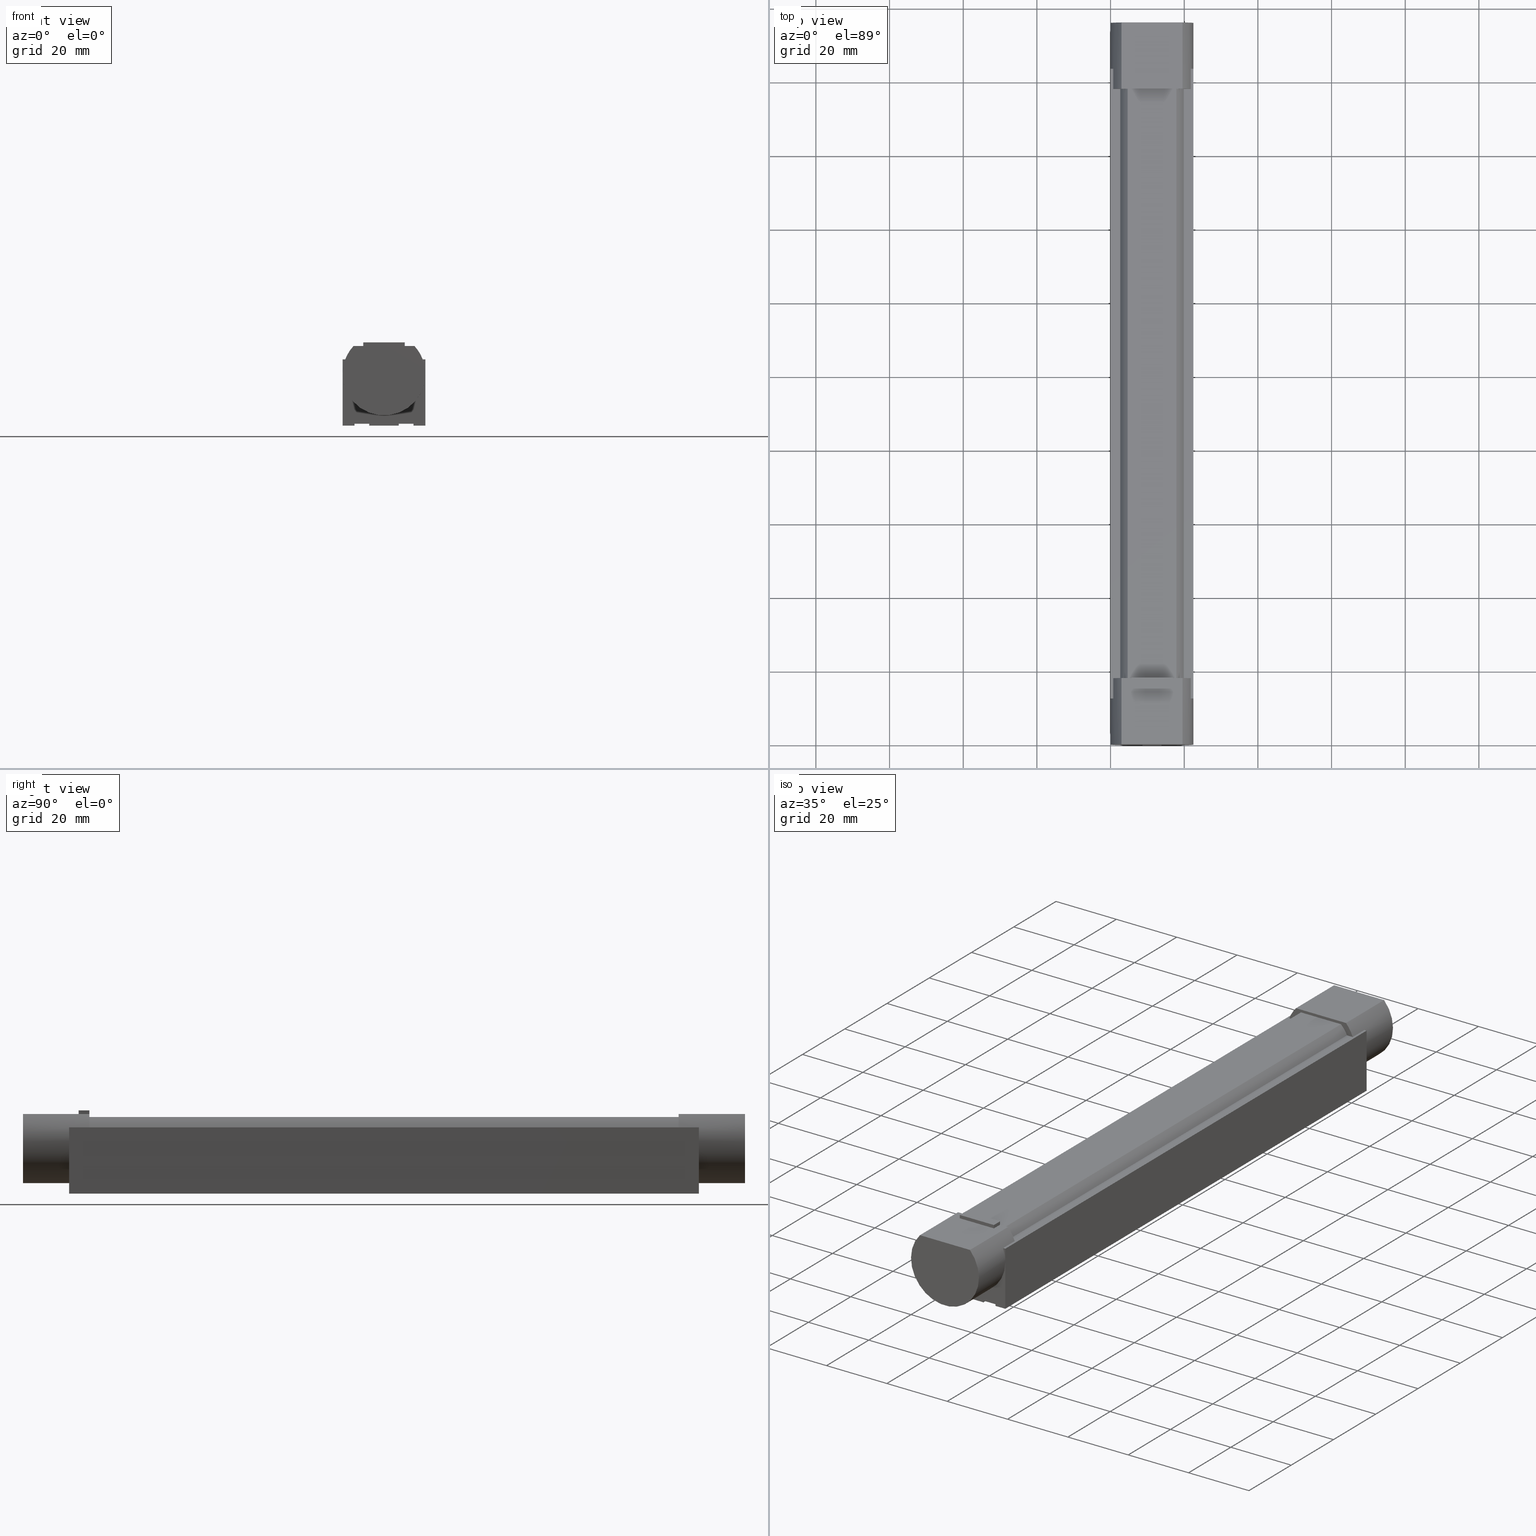
[diagram: canonical four-view strip — front | top / right | iso, engineering-drawing reading convention]
A machine part, canonical four-view strip (front | top / right | iso — engineering-drawing reading convention). The complete STEP part file that produces these views, byte-faithful:
ISO-10303-21;
HEADER;
FILE_DESCRIPTION(('Creo Elements/Direct Modeling STEP Export'),'2;1');
FILE_NAME(
'C:/temp/JobSpoolerServerData/JobServer Files/e37c111c-e7a1-45b4-b9c6-55
6e5893ad4a/work/output/model.stp','2019-07-30T19:57:43',(''),(''),
'Creo Elements/Direct Modeling STEP processor for AP214 (Solid Model)',
'Creo Elements/Direct Modeling 20.1A  29-Sep-2018 (C) Parametric Technol
ogy GmbH','');
FILE_SCHEMA(('AUTOMOTIVE_DESIGN { 1 0 10303 214 1 1 1 1 }'));
ENDSEC;
DATA;
#10=CARTESIAN_POINT('',(106.55,-10.05,-22.));
#20=DIRECTION('',(0.,0.,1.));
#30=DIRECTION('',(1.,0.,0.));
#40=AXIS2_PLACEMENT_3D('',#10,#20,#30);
#50=PLANE('',#40);
#60=CARTESIAN_POINT('',(12.5,0.,-22.));
#70=DIRECTION('',(0.,-1.,0.));
#80=VECTOR('',#70,1.);
#90=LINE('',#60,#80);
#100=CARTESIAN_POINT('',(12.5,11.25,-22.));
#110=VERTEX_POINT('',#100);
#120=CARTESIAN_POINT('',(12.5,10.514041296652,-22.));
#130=VERTEX_POINT('',#120);
#140=EDGE_CURVE('',#110,#130,#90,.T.);
#150=ORIENTED_EDGE('',*,*,#140,.F.);
#160=CARTESIAN_POINT('',(13.7200045691454,10.514041296652,-22.));
#170=DIRECTION('',(-1.,0.,0.));
#180=VECTOR('',#170,1.);
#190=LINE('',#160,#180);
#200=CARTESIAN_POINT('',(18.0000000000001,10.514041296652,-22.));
#210=VERTEX_POINT('',#200);
#220=EDGE_CURVE('',#210,#130,#190,.T.);
#230=ORIENTED_EDGE('',*,*,#220,.T.);
#240=CARTESIAN_POINT('',(18.0000000000001,0.,-22.));
#250=DIRECTION('',(0.,1.,0.));
#260=VECTOR('',#250,1.);
#270=LINE('',#240,#260);
#280=CARTESIAN_POINT('',(18.0000000000001,8.61684396980705,-22.));
#290=VERTEX_POINT('',#280);
#300=EDGE_CURVE('',#290,#210,#270,.T.);
#310=ORIENTED_EDGE('',*,*,#300,.T.);
#320=CARTESIAN_POINT('',(98.,8.61684396980704,-22.));
#330=DIRECTION('',(-1.,0.,0.));
#340=VECTOR('',#330,1.);
#350=LINE('',#320,#340);
#360=CARTESIAN_POINT('',(178.,8.61684396980704,-22.));
#370=VERTEX_POINT('',#360);
#380=EDGE_CURVE('',#370,#290,#350,.T.);
#390=ORIENTED_EDGE('',*,*,#380,.T.);
#400=CARTESIAN_POINT('',(178.,0.,-22.));
#410=DIRECTION('',(0.,-1.,0.));
#420=VECTOR('',#410,1.);
#430=LINE('',#400,#420);
#440=CARTESIAN_POINT('',(178.,10.514041296652,-22.));
#450=VERTEX_POINT('',#440);
#460=EDGE_CURVE('',#450,#370,#430,.T.);
#470=ORIENTED_EDGE('',*,*,#460,.T.);
#480=CARTESIAN_POINT('',(182.279995430855,10.514041296652,-22.));
#490=DIRECTION('',(1.,0.,0.));
#500=VECTOR('',#490,1.);
#510=LINE('',#480,#500);
#520=CARTESIAN_POINT('',(183.5,10.514041296652,-22.));
#530=VERTEX_POINT('',#520);
#540=EDGE_CURVE('',#450,#530,#510,.T.);
#550=ORIENTED_EDGE('',*,*,#540,.F.);
#560=CARTESIAN_POINT('',(183.5,0.,-22.));
#570=DIRECTION('',(0.,-1.,0.));
#580=VECTOR('',#570,1.);
#590=LINE('',#560,#580);
#600=CARTESIAN_POINT('',(183.5,11.25,-22.));
#610=VERTEX_POINT('',#600);
#620=EDGE_CURVE('',#610,#530,#590,.T.);
#630=ORIENTED_EDGE('',*,*,#620,.T.);
#640=CARTESIAN_POINT('',(0.,11.25,-22.));
#650=DIRECTION('',(-1.,0.,0.));
#660=VECTOR('',#650,1.);
#670=LINE('',#640,#660);
#680=EDGE_CURVE('',#610,#110,#670,.T.);
#690=ORIENTED_EDGE('',*,*,#680,.F.);
#700=EDGE_LOOP('',(#690,#630,#550,#470,#390,#310,#230,#150));
#710=FACE_OUTER_BOUND('',#700,.T.);
#720=ADVANCED_FACE('',(#710),#50,.F.);
#730=COLOUR_RGB('',0.647058844566345,0.647058844566345,0.647058844566345
);
#740=FILL_AREA_STYLE_COLOUR('',#730);
#750=FILL_AREA_STYLE('',(#740));
#760=SURFACE_STYLE_FILL_AREA(#750);
#770=SURFACE_SIDE_STYLE('',(#760));
#780=SURFACE_STYLE_USAGE(.BOTH.,#770);
#790=PRESENTATION_STYLE_ASSIGNMENT((#780));
#800=CARTESIAN_POINT('',(183.5,10.05,-20.8));
#810=DIRECTION('',(-1.,-0.,-0.));
#820=DIRECTION('',(0.,0.,-1.));
#830=AXIS2_PLACEMENT_3D('',#800,#810,#820);
#840=PLANE('',#830);
#850=CARTESIAN_POINT('',(183.5,0.,-4.));
#860=DIRECTION('',(0.,1.,0.));
#870=VECTOR('',#860,1.);
#880=LINE('',#850,#870);
#890=CARTESIAN_POINT('',(183.5,-11.25,-4.));
#900=VERTEX_POINT('',#890);
#910=CARTESIAN_POINT('',(183.5,-8.,-4.));
#920=VERTEX_POINT('',#910);
#930=EDGE_CURVE('',#900,#920,#880,.T.);
#940=ORIENTED_EDGE('',*,*,#930,.F.);
#950=CARTESIAN_POINT('',(183.5,-8.,-4.12));
#960=DIRECTION('',(0.,0.,1.));
#970=VECTOR('',#960,1.);
#980=LINE('',#950,#970);
#990=CARTESIAN_POINT('',(183.5,-8.,-4.50000000000001));
#1000=VERTEX_POINT('',#990);
#1010=EDGE_CURVE('',#1000,#920,#980,.T.);
#1020=ORIENTED_EDGE('',*,*,#1010,.T.);
#1030=CARTESIAN_POINT('',(183.5,-7.75,-4.50000000000001));
#1040=DIRECTION('',(0.,1.,0.));
#1050=VECTOR('',#1040,1.);
#1060=LINE('',#1030,#1050);
#1070=CARTESIAN_POINT('',(183.5,-4.00000000000001,-4.50000000000001));
#1080=VERTEX_POINT('',#1070);
#1090=EDGE_CURVE('',#1000,#1080,#1060,.T.);
#1100=ORIENTED_EDGE('',*,*,#1090,.F.);
#1110=CARTESIAN_POINT('',(183.5,-4.00000000000001,-4.2500000000495));
#1120=DIRECTION('',(0.,-4.03717463500056E-15,1.));
#1130=VECTOR('',#1120,1.);
#1140=LINE('',#1110,#1130);
#1150=CARTESIAN_POINT('',(183.5,-4.00000000000001,-4.));
#1160=VERTEX_POINT('',#1150);
#1170=EDGE_CURVE('',#1080,#1160,#1140,.T.);
#1180=ORIENTED_EDGE('',*,*,#1170,.F.);
#1190=CARTESIAN_POINT('',(183.5,-3.75,-4.));
#1200=DIRECTION('',(0.,1.,0.));
#1210=VECTOR('',#1200,1.);
#1220=LINE('',#1190,#1210);
#1230=CARTESIAN_POINT('',(183.5,4.,-4.));
#1240=VERTEX_POINT('',#1230);
#1250=EDGE_CURVE('',#1160,#1240,#1220,.T.);
#1260=ORIENTED_EDGE('',*,*,#1250,.F.);
#1270=CARTESIAN_POINT('',(183.5,4.,-4.05));
#1280=DIRECTION('',(0.,0.,-1.));
#1290=VECTOR('',#1280,1.);
#1300=LINE('',#1270,#1290);
#1310=CARTESIAN_POINT('',(183.5,4.,-4.50000000000001));
#1320=VERTEX_POINT('',#1310);
#1330=EDGE_CURVE('',#1240,#1320,#1300,.T.);
#1340=ORIENTED_EDGE('',*,*,#1330,.F.);
#1350=CARTESIAN_POINT('',(183.5,4.25,-4.50000000000001));
#1360=DIRECTION('',(0.,1.,0.));
#1370=VECTOR('',#1360,1.);
#1380=LINE('',#1350,#1370);
#1390=CARTESIAN_POINT('',(183.5,7.99999999999999,-4.50000000000001));
#1400=VERTEX_POINT('',#1390);
#1410=EDGE_CURVE('',#1320,#1400,#1380,.T.);
#1420=ORIENTED_EDGE('',*,*,#1410,.F.);
#1430=CARTESIAN_POINT('',(183.5,7.99999999999999,-4.08));
#1440=DIRECTION('',(0.,4.33257765707378E-15,-1.));
#1450=VECTOR('',#1440,1.);
#1460=LINE('',#1430,#1450);
#1470=CARTESIAN_POINT('',(183.5,7.99999999999999,-4.));
#1480=VERTEX_POINT('',#1470);
#1490=EDGE_CURVE('',#1480,#1400,#1460,.T.);
#1500=ORIENTED_EDGE('',*,*,#1490,.T.);
#1510=CARTESIAN_POINT('',(183.5,0.,-4.));
#1520=DIRECTION('',(0.,1.,0.));
#1530=VECTOR('',#1520,1.);
#1540=LINE('',#1510,#1530);
#1550=CARTESIAN_POINT('',(183.5,11.25,-4.));
#1560=VERTEX_POINT('',#1550);
#1570=EDGE_CURVE('',#1480,#1560,#1540,.T.);
#1580=ORIENTED_EDGE('',*,*,#1570,.F.);
#1590=CARTESIAN_POINT('',(183.5,11.25,0.));
#1600=DIRECTION('',(0.,0.,-1.));
#1610=VECTOR('',#1600,1.);
#1620=LINE('',#1590,#1610);
#1630=CARTESIAN_POINT('',(183.5,11.2492250572074,-18.));
#1640=VERTEX_POINT('',#1630);
#1650=EDGE_CURVE('',#1560,#1640,#1620,.T.);
#1660=ORIENTED_EDGE('',*,*,#1650,.F.);
#1670=CARTESIAN_POINT('',(183.5,0.,-18.));
#1680=DIRECTION('',(1.,0.,0.));
#1690=DIRECTION('',(0.,0.,1.));
#1700=AXIS2_PLACEMENT_3D('',#1670,#1680,#1690);
#1710=CIRCLE('',#1700,11.2492250572074);
#1720=CARTESIAN_POINT('',(183.5,-11.2492250572074,-18.));
#1730=VERTEX_POINT('',#1720);
#1740=EDGE_CURVE('',#1640,#1730,#1710,.T.);
#1750=ORIENTED_EDGE('',*,*,#1740,.F.);
#1760=CARTESIAN_POINT('',(183.5,-11.25,0.));
#1770=DIRECTION('',(0.,0.,1.));
#1780=VECTOR('',#1770,1.);
#1790=LINE('',#1760,#1780);
#1800=EDGE_CURVE('',#1730,#900,#1790,.T.);
#1810=ORIENTED_EDGE('',*,*,#1800,.F.);
#1820=EDGE_LOOP('',(#1810,#1750,#1660,#1580,#1500,#1420,#1340,#1260,
#1180,#1100,#1020,#940));
#1830=FACE_OUTER_BOUND('',#1820,.T.);
#1840=ADVANCED_FACE('',(#1830),#840,.F.);
#1850=COLOUR_RGB('',0.647058844566345,0.647058844566345,
0.647058844566345);
#1860=FILL_AREA_STYLE_COLOUR('',#1850);
#1870=FILL_AREA_STYLE('',(#1860));
#1880=SURFACE_STYLE_FILL_AREA(#1870);
#1890=SURFACE_SIDE_STYLE('',(#1880));
#1900=SURFACE_STYLE_USAGE(.BOTH.,#1890);
#1910=PRESENTATION_STYLE_ASSIGNMENT((#1900));
#1920=CARTESIAN_POINT('',(18.,5.65,-22.));
#1930=DIRECTION('',(0.,1.,0.));
#1940=DIRECTION('',(0.,0.,1.));
#1950=AXIS2_PLACEMENT_3D('',#1920,#1930,#1940);
#1960=PLANE('',#1950);
#1970=CARTESIAN_POINT('',(15.1,5.65,-26.6));
#1980=DIRECTION('',(0.,0.,1.));
#1990=VECTOR('',#1980,1.);
#2000=LINE('',#1970,#1990);
#2010=CARTESIAN_POINT('',(15.1,5.65,-26.6));
#2020=VERTEX_POINT('',#2010);
#2030=CARTESIAN_POINT('',(15.1,5.65,-25.6039554467767));
#2040=VERTEX_POINT('',#2030);
#2050=EDGE_CURVE('',#2020,#2040,#2000,.T.);
#2060=ORIENTED_EDGE('',*,*,#2050,.T.);
#2070=CARTESIAN_POINT('',(15.1,5.65,-26.6));
#2080=DIRECTION('',(1.,0.,0.));
#2090=VECTOR('',#2080,1.);
#2100=LINE('',#2070,#2090);
#2110=CARTESIAN_POINT('',(18.,5.65,-26.6));
#2120=VERTEX_POINT('',#2110);
#2130=EDGE_CURVE('',#2020,#2120,#2100,.T.);
#2140=ORIENTED_EDGE('',*,*,#2130,.F.);
#2150=CARTESIAN_POINT('',(18.,5.65,-26.6));
#2160=DIRECTION('',(0.,0.,1.));
#2170=VECTOR('',#2160,1.);
#2180=LINE('',#2150,#2170);
#2190=CARTESIAN_POINT('',(18.0000000000001,5.65,-25.6039554467767));
#2200=VERTEX_POINT('',#2190);
#2210=EDGE_CURVE('',#2120,#2200,#2180,.T.);
#2220=ORIENTED_EDGE('',*,*,#2210,.F.);
#2230=CARTESIAN_POINT('',(0.,5.65,-25.6039554467767));
#2240=DIRECTION('',(-1.,0.,0.));
#2250=VECTOR('',#2240,1.);
#2260=LINE('',#2230,#2250);
#2270=EDGE_CURVE('',#2200,#2040,#2260,.T.);
#2280=ORIENTED_EDGE('',*,*,#2270,.F.);
#2290=EDGE_LOOP('',(#2280,#2220,#2140,#2060));
#2300=FACE_OUTER_BOUND('',#2290,.T.);
#2310=ADVANCED_FACE('',(#2300),#1960,.T.);
#2320=COLOUR_RGB('',0.313725501298904,0.313725501298904,
0.313725501298904);
#2330=FILL_AREA_STYLE_COLOUR('',#2320);
#2340=FILL_AREA_STYLE('',(#2330));
#2350=SURFACE_STYLE_FILL_AREA(#2340);
#2360=SURFACE_SIDE_STYLE('',(#2350));
#2370=SURFACE_STYLE_USAGE(.BOTH.,#2360);
#2380=PRESENTATION_STYLE_ASSIGNMENT((#2370));
#2390=CARTESIAN_POINT('',(12.5,10.05,-20.8));
#2400=DIRECTION('',(1.,-0.,0.));
#2410=DIRECTION('',(0.,0.,-1.));
#2420=AXIS2_PLACEMENT_3D('',#2390,#2400,#2410);
#2430=PLANE('',#2420);
#2440=CARTESIAN_POINT('',(12.5,0.,-18.));
#2450=DIRECTION('',(-1.,0.,0.));
#2460=DIRECTION('',(0.,0.,1.));
#2470=AXIS2_PLACEMENT_3D('',#2440,#2450,#2460);
#2480=CIRCLE('',#2470,11.2492250572074);
#2490=CARTESIAN_POINT('',(12.5,11.2492250572074,-18.));
#2500=VERTEX_POINT('',#2490);
#2510=EDGE_CURVE('',#2500,#130,#2480,.T.);
#2520=ORIENTED_EDGE('',*,*,#2510,.F.);
#2530=ORIENTED_EDGE('',*,*,#140,.T.);
#2540=CARTESIAN_POINT('',(12.5,11.25,0.));
#2550=DIRECTION('',(0.,0.,-1.));
#2560=VECTOR('',#2550,1.);
#2570=LINE('',#2540,#2560);
#2580=EDGE_CURVE('',#2500,#110,#2570,.T.);
#2590=ORIENTED_EDGE('',*,*,#2580,.T.);
#2600=EDGE_LOOP('',(#2590,#2530,#2520));
#2610=FACE_OUTER_BOUND('',#2600,.T.);
#2620=ADVANCED_FACE('',(#2610),#2430,.F.);
#2630=COLOUR_RGB('',0.647058844566345,0.647058844566345,
0.647058844566345);
#2640=FILL_AREA_STYLE_COLOUR('',#2630);
#2650=FILL_AREA_STYLE('',(#2640));
#2660=SURFACE_STYLE_FILL_AREA(#2650);
#2670=SURFACE_SIDE_STYLE('',(#2660));
#2680=SURFACE_STYLE_USAGE(.BOTH.,#2670);
#2690=PRESENTATION_STYLE_ASSIGNMENT((#2680));
#2700=CARTESIAN_POINT('',(15.1,-5.65,-22.));
#2710=DIRECTION('',(0.,-1.,0.));
#2720=DIRECTION('',(0.,0.,-1.));
#2730=AXIS2_PLACEMENT_3D('',#2700,#2710,#2720);
#2740=PLANE('',#2730);
#2750=CARTESIAN_POINT('',(18.,-5.65,-26.6));
#2760=DIRECTION('',(0.,0.,1.));
#2770=VECTOR('',#2760,1.);
#2780=LINE('',#2750,#2770);
#2790=CARTESIAN_POINT('',(18.,-5.65,-26.6));
#2800=VERTEX_POINT('',#2790);
#2810=CARTESIAN_POINT('',(18.,-5.65,-25.6039554467767));
#2820=VERTEX_POINT('',#2810);
#2830=EDGE_CURVE('',#2800,#2820,#2780,.T.);
#2840=ORIENTED_EDGE('',*,*,#2830,.T.);
#2850=CARTESIAN_POINT('',(15.1,-5.65,-26.6));
#2860=DIRECTION('',(1.,0.,0.));
#2870=VECTOR('',#2860,1.);
#2880=LINE('',#2850,#2870);
#2890=CARTESIAN_POINT('',(15.1,-5.65,-26.6));
#2900=VERTEX_POINT('',#2890);
#2910=EDGE_CURVE('',#2900,#2800,#2880,.T.);
#2920=ORIENTED_EDGE('',*,*,#2910,.T.);
#2930=CARTESIAN_POINT('',(15.1,-5.65,-26.6));
#2940=DIRECTION('',(0.,0.,1.));
#2950=VECTOR('',#2940,1.);
#2960=LINE('',#2930,#2950);
#2970=CARTESIAN_POINT('',(15.1,-5.65,-25.6039554467767));
#2980=VERTEX_POINT('',#2970);
#2990=EDGE_CURVE('',#2900,#2980,#2960,.T.);
#3000=ORIENTED_EDGE('',*,*,#2990,.F.);
#3010=CARTESIAN_POINT('',(0.,-5.65,-25.6039554467767));
#3020=DIRECTION('',(1.,0.,0.));
#3030=VECTOR('',#3020,1.);
#3040=LINE('',#3010,#3030);
#3050=EDGE_CURVE('',#2980,#2820,#3040,.T.);
#3060=ORIENTED_EDGE('',*,*,#3050,.F.);
#3070=EDGE_LOOP('',(#3060,#3000,#2920,#2840));
#3080=FACE_OUTER_BOUND('',#3070,.T.);
#3090=ADVANCED_FACE('',(#3080),#2740,.T.);
#3100=COLOUR_RGB('',0.313725501298904,0.313725501298904,
0.313725501298904);
#3110=FILL_AREA_STYLE_COLOUR('',#3100);
#3120=FILL_AREA_STYLE('',(#3110));
#3130=SURFACE_STYLE_FILL_AREA(#3120);
#3140=SURFACE_SIDE_STYLE('',(#3130));
#3150=SURFACE_STYLE_USAGE(.BOTH.,#3140);
#3160=PRESENTATION_STYLE_ASSIGNMENT((#3150));
#3170=CARTESIAN_POINT('',(106.55,11.25,-20.8));
#3180=DIRECTION('',(0.,-1.,0.));
#3190=DIRECTION('',(0.,0.,-1.));
#3200=AXIS2_PLACEMENT_3D('',#3170,#3180,#3190);
#3210=PLANE('',#3200);
#3220=EDGE_CURVE('',#1640,#610,#1620,.T.);
#3230=ORIENTED_EDGE('',*,*,#3220,.T.);
#3240=ORIENTED_EDGE('',*,*,#1650,.T.);
#3250=CARTESIAN_POINT('',(0.,11.25,-4.));
#3260=DIRECTION('',(-1.,0.,0.));
#3270=VECTOR('',#3260,1.);
#3280=LINE('',#3250,#3270);
#3290=CARTESIAN_POINT('',(12.5,11.25,-4.));
#3300=VERTEX_POINT('',#3290);
#3310=EDGE_CURVE('',#1560,#3300,#3280,.T.);
#3320=ORIENTED_EDGE('',*,*,#3310,.F.);
#3330=EDGE_CURVE('',#3300,#2500,#2570,.T.);
#3340=ORIENTED_EDGE('',*,*,#3330,.F.);
#3350=ORIENTED_EDGE('',*,*,#2580,.F.);
#3360=ORIENTED_EDGE('',*,*,#680,.T.);
#3370=EDGE_LOOP('',(#3360,#3350,#3340,#3320,#3240,#3230));
#3380=FACE_OUTER_BOUND('',#3370,.T.);
#3390=ADVANCED_FACE('',(#3380),#3210,.F.);
#3400=COLOUR_RGB('',0.647058844566345,0.647058844566345,
0.647058844566345);
#3410=FILL_AREA_STYLE_COLOUR('',#3400);
#3420=FILL_AREA_STYLE('',(#3410));
#3430=SURFACE_STYLE_FILL_AREA(#3420);
#3440=SURFACE_SIDE_STYLE('',(#3430));
#3450=SURFACE_STYLE_USAGE(.BOTH.,#3440);
#3460=PRESENTATION_STYLE_ASSIGNMENT((#3450));
#3470=CARTESIAN_POINT('',(106.55,-11.25,-4.50000000000001));
#3480=DIRECTION('',(0.,1.,0.));
#3490=DIRECTION('',(0.,0.,1.));
#3500=AXIS2_PLACEMENT_3D('',#3470,#3480,#3490);
#3510=PLANE('',#3500);
#3520=CARTESIAN_POINT('',(12.5,-11.25,0.));
#3530=DIRECTION('',(0.,0.,1.));
#3540=VECTOR('',#3530,1.);
#3550=LINE('',#3520,#3540);
#3560=CARTESIAN_POINT('',(12.5,-11.25,-22.));
#3570=VERTEX_POINT('',#3560);
#3580=CARTESIAN_POINT('',(12.5,-11.2492250572074,-18.));
#3590=VERTEX_POINT('',#3580);
#3600=EDGE_CURVE('',#3570,#3590,#3550,.T.);
#3610=ORIENTED_EDGE('',*,*,#3600,.F.);
#3620=CARTESIAN_POINT('',(12.5,-11.25,-4.));
#3630=VERTEX_POINT('',#3620);
#3640=EDGE_CURVE('',#3590,#3630,#3550,.T.);
#3650=ORIENTED_EDGE('',*,*,#3640,.F.);
#3660=CARTESIAN_POINT('',(0.,-11.25,-4.));
#3670=DIRECTION('',(-1.,0.,0.));
#3680=VECTOR('',#3670,1.);
#3690=LINE('',#3660,#3680);
#3700=EDGE_CURVE('',#900,#3630,#3690,.T.);
#3710=ORIENTED_EDGE('',*,*,#3700,.T.);
#3720=ORIENTED_EDGE('',*,*,#1800,.T.);
#3730=CARTESIAN_POINT('',(183.5,-11.25,-22.));
#3740=VERTEX_POINT('',#3730);
#3750=EDGE_CURVE('',#3740,#1730,#1790,.T.);
#3760=ORIENTED_EDGE('',*,*,#3750,.T.);
#3770=CARTESIAN_POINT('',(0.,-11.25,-22.));
#3780=DIRECTION('',(-1.,0.,0.));
#3790=VECTOR('',#3780,1.);
#3800=LINE('',#3770,#3790);
#3810=EDGE_CURVE('',#3740,#3570,#3800,.T.);
#3820=ORIENTED_EDGE('',*,*,#3810,.F.);
#3830=EDGE_LOOP('',(#3820,#3760,#3720,#3710,#3650,#3610));
#3840=FACE_OUTER_BOUND('',#3830,.T.);
#3850=ADVANCED_FACE('',(#3840),#3510,.F.);
#3860=COLOUR_RGB('',0.647058844566345,0.647058844566345,
0.647058844566345);
#3870=FILL_AREA_STYLE_COLOUR('',#3860);
#3880=FILL_AREA_STYLE('',(#3870));
#3890=SURFACE_STYLE_FILL_AREA(#3880);
#3900=SURFACE_SIDE_STYLE('',(#3890));
#3910=SURFACE_STYLE_USAGE(.BOTH.,#3900);
#3920=PRESENTATION_STYLE_ASSIGNMENT((#3910));
#3930=CARTESIAN_POINT('',(182.279995430855,0.,-18.));
#3940=DIRECTION('',(1.,0.,0.));
#3950=DIRECTION('',(0.,0.,1.));
#3960=AXIS2_PLACEMENT_3D('',#3930,#3940,#3950);
#3970=CYLINDRICAL_SURFACE('',#3960,11.2492250572074);
#3980=CARTESIAN_POINT('',(178.,0.,-18.));
#3990=DIRECTION('',(-1.,0.,0.));
#4000=DIRECTION('',(0.,-2.36863894672745E-16,1.));
#4010=AXIS2_PLACEMENT_3D('',#3980,#3990,#4000);
#4020=CIRCLE('',#4010,11.2492250572074);
#4030=CARTESIAN_POINT('',(178.,-8.29004981596238,-25.6039554467767));
#4040=VERTEX_POINT('',#4030);
#4050=CARTESIAN_POINT('',(178.,-10.514041296652,-22.));
#4060=VERTEX_POINT('',#4050);
#4070=EDGE_CURVE('',#4040,#4060,#4020,.T.);
#4080=ORIENTED_EDGE('',*,*,#4070,.F.);
#4090=CARTESIAN_POINT('',(182.279995430855,-10.514041296652,-22.));
#4100=DIRECTION('',(1.,0.,0.));
#4110=VECTOR('',#4100,1.);
#4120=LINE('',#4090,#4110);
#4130=CARTESIAN_POINT('',(183.5,-10.514041296652,-22.));
#4140=VERTEX_POINT('',#4130);
#4150=EDGE_CURVE('',#4060,#4140,#4120,.T.);
#4160=ORIENTED_EDGE('',*,*,#4150,.F.);
#4170=EDGE_CURVE('',#1730,#4140,#1710,.T.);
#4180=ORIENTED_EDGE('',*,*,#4170,.T.);
#4190=ORIENTED_EDGE('',*,*,#1740,.T.);
#4200=EDGE_CURVE('',#530,#1640,#1710,.T.);
#4210=ORIENTED_EDGE('',*,*,#4200,.T.);
#4220=ORIENTED_EDGE('',*,*,#540,.T.);
#4230=CARTESIAN_POINT('',(178.,8.29004981596237,-25.6039554467767));
#4240=VERTEX_POINT('',#4230);
#4250=EDGE_CURVE('',#450,#4240,#4020,.T.);
#4260=ORIENTED_EDGE('',*,*,#4250,.F.);
#4270=CARTESIAN_POINT('',(196.,8.29004981596238,-25.6039554467767));
#4280=DIRECTION('',(-1.,0.,0.));
#4290=VECTOR('',#4280,1.);
#4300=LINE('',#4270,#4290);
#4310=CARTESIAN_POINT('',(196.,8.29004981596238,-25.6039554467767));
#4320=VERTEX_POINT('',#4310);
#4330=EDGE_CURVE('',#4320,#4240,#4300,.T.);
#4340=ORIENTED_EDGE('',*,*,#4330,.T.);
#4350=CARTESIAN_POINT('',(196.,0.,-18.));
#4360=DIRECTION('',(1.,0.,0.));
#4370=DIRECTION('',(0.,0.736944080485875,-0.675953713087537));
#4380=AXIS2_PLACEMENT_3D('',#4350,#4360,#4370);
#4390=CIRCLE('',#4380,11.2492250572074);
#4400=CARTESIAN_POINT('',(196.,-8.29004981596238,-25.6039554467767));
#4410=VERTEX_POINT('',#4400);
#4420=EDGE_CURVE('',#4320,#4410,#4390,.T.);
#4430=ORIENTED_EDGE('',*,*,#4420,.F.);
#4440=CARTESIAN_POINT('',(178.,-8.29004981596239,-25.6039554467767));
#4450=DIRECTION('',(1.,0.,0.));
#4460=VECTOR('',#4450,1.);
#4470=LINE('',#4440,#4460);
#4480=EDGE_CURVE('',#4040,#4410,#4470,.T.);
#4490=ORIENTED_EDGE('',*,*,#4480,.T.);
#4500=EDGE_LOOP('',(#4490,#4430,#4340,#4260,#4220,#4210,#4190,#4180,
#4160,#4080));
#4510=FACE_OUTER_BOUND('',#4500,.T.);
#4520=ADVANCED_FACE('',(#4510),#3970,.T.);
#4530=COLOUR_RGB('',0.313725501298904,0.313725501298904,
0.313725501298904);
#4540=FILL_AREA_STYLE_COLOUR('',#4530);
#4550=FILL_AREA_STYLE('',(#4540));
#4560=SURFACE_STYLE_FILL_AREA(#4550);
#4570=SURFACE_SIDE_STYLE('',(#4560));
#4580=SURFACE_STYLE_USAGE(.BOTH.,#4570);
#4590=PRESENTATION_STYLE_ASSIGNMENT((#4580));
#4600=CARTESIAN_POINT('',(183.5,-11.25,-4.));
#4610=DIRECTION('',(-0.,-0.,-1.));
#4620=DIRECTION('',(0.,-1.,0.));
#4630=AXIS2_PLACEMENT_3D('',#4600,#4610,#4620);
#4640=PLANE('',#4630);
#4650=ORIENTED_EDGE('',*,*,#930,.T.);
#4660=ORIENTED_EDGE('',*,*,#3700,.F.);
#4670=CARTESIAN_POINT('',(12.5,0.,-4.));
#4680=DIRECTION('',(0.,-1.,0.));
#4690=VECTOR('',#4680,1.);
#4700=LINE('',#4670,#4690);
#4710=CARTESIAN_POINT('',(12.5,-8.,-4.));
#4720=VERTEX_POINT('',#4710);
#4730=EDGE_CURVE('',#4720,#3630,#4700,.T.);
#4740=ORIENTED_EDGE('',*,*,#4730,.T.);
#4750=CARTESIAN_POINT('',(0.,-8.,-4.));
#4760=DIRECTION('',(-1.,0.,0.));
#4770=VECTOR('',#4760,1.);
#4780=LINE('',#4750,#4770);
#4790=EDGE_CURVE('',#920,#4720,#4780,.T.);
#4800=ORIENTED_EDGE('',*,*,#4790,.T.);
#4810=EDGE_LOOP('',(#4800,#4740,#4660,#4650));
#4820=FACE_OUTER_BOUND('',#4810,.T.);
#4830=ADVANCED_FACE('',(#4820),#4640,.F.);
#4840=COLOUR_RGB('',0.647058844566345,0.647058844566345,
0.647058844566345);
#4850=FILL_AREA_STYLE_COLOUR('',#4840);
#4860=FILL_AREA_STYLE('',(#4850));
#4870=SURFACE_STYLE_FILL_AREA(#4860);
#4880=SURFACE_SIDE_STYLE('',(#4870));
#4890=SURFACE_STYLE_USAGE(.BOTH.,#4880);
#4900=PRESENTATION_STYLE_ASSIGNMENT((#4890));
#4910=CARTESIAN_POINT('',(183.5,-4.00000000000001,-4.));
#4920=DIRECTION('',(-0.,-0.,-1.));
#4930=DIRECTION('',(0.,-1.,0.));
#4940=AXIS2_PLACEMENT_3D('',#4910,#4920,#4930);
#4950=PLANE('',#4940);
#4960=ORIENTED_EDGE('',*,*,#1250,.T.);
#4970=CARTESIAN_POINT('',(0.,-4.00000000000001,-4.));
#4980=DIRECTION('',(-1.,0.,0.));
#4990=VECTOR('',#4980,1.);
#5000=LINE('',#4970,#4990);
#5010=CARTESIAN_POINT('',(12.5,-4.00000000000001,-4.));
#5020=VERTEX_POINT('',#5010);
#5030=EDGE_CURVE('',#1160,#5020,#5000,.T.);
#5040=ORIENTED_EDGE('',*,*,#5030,.F.);
#5050=CARTESIAN_POINT('',(12.5,0.,-4.));
#5060=DIRECTION('',(0.,-1.,0.));
#5070=VECTOR('',#5060,1.);
#5080=LINE('',#5050,#5070);
#5090=CARTESIAN_POINT('',(12.5,4.,-4.));
#5100=VERTEX_POINT('',#5090);
#5110=EDGE_CURVE('',#5100,#5020,#5080,.T.);
#5120=ORIENTED_EDGE('',*,*,#5110,.T.);
#5130=CARTESIAN_POINT('',(0.,4.,-4.));
#5140=DIRECTION('',(-1.,0.,0.));
#5150=VECTOR('',#5140,1.);
#5160=LINE('',#5130,#5150);
#5170=EDGE_CURVE('',#1240,#5100,#5160,.T.);
#5180=ORIENTED_EDGE('',*,*,#5170,.T.);
#5190=EDGE_LOOP('',(#5180,#5120,#5040,#4960));
#5200=FACE_OUTER_BOUND('',#5190,.T.);
#5210=CARTESIAN_POINT('',(23.0000000000001,-3.46944695195361E-15,-4.));
#5220=DIRECTION('',(0.,0.,-1.));
#5230=DIRECTION('',(-1.,-2.3970724395316E-16,0.));
#5240=AXIS2_PLACEMENT_3D('',#5210,#5220,#5230);
#5250=CIRCLE('',#5240,2.2);
#5260=CARTESIAN_POINT('',(25.2000000000001,-2.67266871944424E-15,-4.));
#5270=VERTEX_POINT('',#5260);
#5280=CARTESIAN_POINT('',(20.8000000000001,-3.99680288865056E-15,-4.));
#5290=VERTEX_POINT('',#5280);
#5300=EDGE_CURVE('',#5270,#5290,#5250,.T.);
#5310=ORIENTED_EDGE('',*,*,#5300,.T.);
#5320=EDGE_CURVE('',#5290,#5270,#5250,.T.);
#5330=ORIENTED_EDGE('',*,*,#5320,.T.);
#5340=EDGE_LOOP('',(#5330,#5310));
#5350=FACE_BOUND('',#5340,.T.);
#5360=CARTESIAN_POINT('',(173.,-3.46944695195361E-15,-4.));
#5370=DIRECTION('',(0.,0.,-1.));
#5380=DIRECTION('',(1.,-3.78485122031329E-17,0.));
#5390=AXIS2_PLACEMENT_3D('',#5360,#5370,#5380);
#5400=CIRCLE('',#5390,2.2);
#5410=CARTESIAN_POINT('',(175.2,-3.5527136788005E-15,-4.));
#5420=VERTEX_POINT('',#5410);
#5430=CARTESIAN_POINT('',(170.8,-3.65560252091914E-15,-4.));
#5440=VERTEX_POINT('',#5430);
#5450=EDGE_CURVE('',#5420,#5440,#5400,.T.);
#5460=ORIENTED_EDGE('',*,*,#5450,.T.);
#5470=EDGE_CURVE('',#5440,#5420,#5400,.T.);
#5480=ORIENTED_EDGE('',*,*,#5470,.T.);
#5490=EDGE_LOOP('',(#5480,#5460));
#5500=FACE_BOUND('',#5490,.T.);
#5510=ADVANCED_FACE('',(#5200,#5350,#5500),#4950,.F.);
#5520=COLOUR_RGB('',0.647058844566345,0.647058844566345,
0.647058844566345);
#5530=FILL_AREA_STYLE_COLOUR('',#5520);
#5540=FILL_AREA_STYLE('',(#5530));
#5550=SURFACE_STYLE_FILL_AREA(#5540);
#5560=SURFACE_SIDE_STYLE('',(#5550));
#5570=SURFACE_STYLE_USAGE(.BOTH.,#5560);
#5580=PRESENTATION_STYLE_ASSIGNMENT((#5570));
#5590=ORIENTED_EDGE('',*,*,#3330,.T.);
#5600=CARTESIAN_POINT('',(12.5,0.,-4.));
#5610=DIRECTION('',(0.,-1.,0.));
#5620=VECTOR('',#5610,1.);
#5630=LINE('',#5600,#5620);
#5640=CARTESIAN_POINT('',(12.5,7.99999999999999,-4.));
#5650=VERTEX_POINT('',#5640);
#5660=EDGE_CURVE('',#3300,#5650,#5630,.T.);
#5670=ORIENTED_EDGE('',*,*,#5660,.F.);
#5680=CARTESIAN_POINT('',(12.5,7.99999999999997,0.));
#5690=DIRECTION('',(0.,4.33257765707378E-15,-1.));
#5700=VECTOR('',#5690,1.);
#5710=LINE('',#5680,#5700);
#5720=CARTESIAN_POINT('',(12.5,7.99999999999999,-4.50000000000001));
#5730=VERTEX_POINT('',#5720);
#5740=EDGE_CURVE('',#5650,#5730,#5710,.T.);
#5750=ORIENTED_EDGE('',*,*,#5740,.F.);
#5760=CARTESIAN_POINT('',(12.5,0.,-4.50000000000001));
#5770=DIRECTION('',(0.,-1.,0.));
#5780=VECTOR('',#5770,1.);
#5790=LINE('',#5760,#5780);
#5800=CARTESIAN_POINT('',(12.5,4.,-4.50000000000001));
#5810=VERTEX_POINT('',#5800);
#5820=EDGE_CURVE('',#5730,#5810,#5790,.T.);
#5830=ORIENTED_EDGE('',*,*,#5820,.F.);
#5840=CARTESIAN_POINT('',(12.5,4.,0.));
#5850=DIRECTION('',(0.,0.,1.));
#5860=VECTOR('',#5850,1.);
#5870=LINE('',#5840,#5860);
#5880=EDGE_CURVE('',#5810,#5100,#5870,.T.);
#5890=ORIENTED_EDGE('',*,*,#5880,.F.);
#5900=ORIENTED_EDGE('',*,*,#5110,.F.);
#5910=CARTESIAN_POINT('',(12.5,-4.00000000000003,0.));
#5920=DIRECTION('',(0.,4.03717463500056E-15,-1.));
#5930=VECTOR('',#5920,1.);
#5940=LINE('',#5910,#5930);
#5950=CARTESIAN_POINT('',(12.5,-4.00000000000001,-4.50000000000001));
#5960=VERTEX_POINT('',#5950);
#5970=EDGE_CURVE('',#5020,#5960,#5940,.T.);
#5980=ORIENTED_EDGE('',*,*,#5970,.F.);
#5990=CARTESIAN_POINT('',(12.5,0.,-4.50000000000001));
#6000=DIRECTION('',(0.,-1.,0.));
#6010=VECTOR('',#6000,1.);
#6020=LINE('',#5990,#6010);
#6030=CARTESIAN_POINT('',(12.5,-8.,-4.50000000000001));
#6040=VERTEX_POINT('',#6030);
#6050=EDGE_CURVE('',#5960,#6040,#6020,.T.);
#6060=ORIENTED_EDGE('',*,*,#6050,.F.);
#6070=CARTESIAN_POINT('',(12.5,-8.,0.));
#6080=DIRECTION('',(0.,0.,1.));
#6090=VECTOR('',#6080,1.);
#6100=LINE('',#6070,#6090);
#6110=EDGE_CURVE('',#6040,#4720,#6100,.T.);
#6120=ORIENTED_EDGE('',*,*,#6110,.F.);
#6130=ORIENTED_EDGE('',*,*,#4730,.F.);
#6140=ORIENTED_EDGE('',*,*,#3640,.T.);
#6150=EDGE_CURVE('',#3590,#2500,#2480,.T.);
#6160=ORIENTED_EDGE('',*,*,#6150,.F.);
#6170=EDGE_LOOP('',(#6160,#6140,#6130,#6120,#6060,#5980,#5900,#5890,
#5830,#5750,#5670,#5590));
#6180=FACE_OUTER_BOUND('',#6170,.T.);
#6190=ADVANCED_FACE('',(#6180),#2430,.F.);
#6200=COLOUR_RGB('',0.647058844566345,0.647058844566345,
0.647058844566345);
#6210=FILL_AREA_STYLE_COLOUR('',#6200);
#6220=FILL_AREA_STYLE('',(#6210));
#6230=SURFACE_STYLE_FILL_AREA(#6220);
#6240=SURFACE_SIDE_STYLE('',(#6230));
#6250=SURFACE_STYLE_USAGE(.BOTH.,#6240);
#6260=PRESENTATION_STYLE_ASSIGNMENT((#6250));
#6270=CARTESIAN_POINT('',(18.,5.65,-26.6));
#6280=DIRECTION('',(0.,0.,-1.));
#6290=DIRECTION('',(-1.,0.,0.));
#6300=AXIS2_PLACEMENT_3D('',#6270,#6280,#6290);
#6310=PLANE('',#6300);
#6320=CARTESIAN_POINT('',(15.1,-5.65,-26.6));
#6330=DIRECTION('',(0.,1.,0.));
#6340=VECTOR('',#6330,1.);
#6350=LINE('',#6320,#6340);
#6360=EDGE_CURVE('',#2900,#2020,#6350,.T.);
#6370=ORIENTED_EDGE('',*,*,#6360,.T.);
#6380=ORIENTED_EDGE('',*,*,#2910,.F.);
#6390=CARTESIAN_POINT('',(18.,-5.65,-26.6));
#6400=DIRECTION('',(0.,1.,0.));
#6410=VECTOR('',#6400,1.);
#6420=LINE('',#6390,#6410);
#6430=EDGE_CURVE('',#2800,#2120,#6420,.T.);
#6440=ORIENTED_EDGE('',*,*,#6430,.F.);
#6450=ORIENTED_EDGE('',*,*,#2130,.T.);
#6460=EDGE_LOOP('',(#6450,#6440,#6380,#6370));
#6470=FACE_OUTER_BOUND('',#6460,.T.);
#6480=ADVANCED_FACE('',(#6470),#6310,.T.);
#6490=COLOUR_RGB('',0.313725501298904,0.313725501298904,
0.313725501298904);
#6500=FILL_AREA_STYLE_COLOUR('',#6490);
#6510=FILL_AREA_STYLE('',(#6500));
#6520=SURFACE_STYLE_FILL_AREA(#6510);
#6530=SURFACE_SIDE_STYLE('',(#6520));
#6540=SURFACE_STYLE_USAGE(.BOTH.,#6530);
#6550=PRESENTATION_STYLE_ASSIGNMENT((#6540));
#6560=CARTESIAN_POINT('',(18.,0.,-18.));
#6570=DIRECTION('',(-1.,0.,0.));
#6580=DIRECTION('',(0.,0.,1.));
#6590=AXIS2_PLACEMENT_3D('',#6560,#6570,#6580);
#6600=PLANE('',#6590);
#6610=CARTESIAN_POINT('',(18.0000000000001,0.,-18.));
#6620=DIRECTION('',(-1.,0.,0.));
#6630=DIRECTION('',(0.,0.,1.));
#6640=AXIS2_PLACEMENT_3D('',#6610,#6620,#6630);
#6650=CIRCLE('',#6640,9.5);
#6660=CARTESIAN_POINT('',(18.0000000000001,6.63400331624879,-24.8));
#6670=VERTEX_POINT('',#6660);
#6680=EDGE_CURVE('',#290,#6670,#6650,.T.);
#6690=ORIENTED_EDGE('',*,*,#6680,.T.);
#6700=ORIENTED_EDGE('',*,*,#300,.F.);
#6710=CARTESIAN_POINT('',(18.0000000000001,0.,-18.));
#6720=DIRECTION('',(1.,0.,0.));
#6730=DIRECTION('',(0.,4.7372778934549E-16,1.));
#6740=AXIS2_PLACEMENT_3D('',#6710,#6720,#6730);
#6750=CIRCLE('',#6740,11.2492250572074);
#6760=CARTESIAN_POINT('',(18.0000000000001,8.29004981596238,
-25.6039554467767));
#6770=VERTEX_POINT('',#6760);
#6780=EDGE_CURVE('',#6770,#210,#6750,.T.);
#6790=ORIENTED_EDGE('',*,*,#6780,.T.);
#6800=CARTESIAN_POINT('',(18.0000000000001,-8.29004981596238,
-25.6039554467767));
#6810=DIRECTION('',(0.,1.,0.));
#6820=VECTOR('',#6810,1.);
#6830=LINE('',#6800,#6820);
#6840=EDGE_CURVE('',#2200,#6770,#6830,.T.);
#6850=ORIENTED_EDGE('',*,*,#6840,.T.);
#6860=ORIENTED_EDGE('',*,*,#2210,.T.);
#6870=ORIENTED_EDGE('',*,*,#6430,.T.);
#6880=ORIENTED_EDGE('',*,*,#2830,.F.);
#6890=CARTESIAN_POINT('',(18.0000000000001,-8.29004981596239,
-25.6039554467767));
#6900=VERTEX_POINT('',#6890);
#6910=EDGE_CURVE('',#6900,#2820,#6830,.T.);
#6920=ORIENTED_EDGE('',*,*,#6910,.T.);
#6930=CARTESIAN_POINT('',(18.0000000000001,-10.514041296652,-22.));
#6940=VERTEX_POINT('',#6930);
#6950=EDGE_CURVE('',#6940,#6900,#6750,.T.);
#6960=ORIENTED_EDGE('',*,*,#6950,.T.);
#6970=CARTESIAN_POINT('',(18.0000000000001,-8.61684396980704,-22.));
#6980=VERTEX_POINT('',#6970);
#6990=EDGE_CURVE('',#6940,#6980,#270,.T.);
#7000=ORIENTED_EDGE('',*,*,#6990,.F.);
#7010=CARTESIAN_POINT('',(18.0000000000001,0.,-18.));
#7020=DIRECTION('',(-1.,0.,0.));
#7030=DIRECTION('',(0.,0.,1.));
#7040=AXIS2_PLACEMENT_3D('',#7010,#7020,#7030);
#7050=CIRCLE('',#7040,9.5);
#7060=CARTESIAN_POINT('',(18.0000000000001,-6.63400331624879,-24.8));
#7070=VERTEX_POINT('',#7060);
#7080=EDGE_CURVE('',#7070,#6980,#7050,.T.);
#7090=ORIENTED_EDGE('',*,*,#7080,.T.);
#7100=CARTESIAN_POINT('',(18.0000000000001,0.,-24.8));
#7110=DIRECTION('',(0.,-1.,0.));
#7120=VECTOR('',#7110,1.);
#7130=LINE('',#7100,#7120);
#7140=EDGE_CURVE('',#6670,#7070,#7130,.T.);
#7150=ORIENTED_EDGE('',*,*,#7140,.T.);
#7160=EDGE_LOOP('',(#7150,#7090,#7000,#6960,#6920,#6880,#6870,#6860,
#6850,#6790,#6700,#6690));
#7170=FACE_OUTER_BOUND('',#7160,.T.);
#7180=ADVANCED_FACE('',(#7170),#6600,.F.);
#7190=COLOUR_RGB('',0.313725501298904,0.313725501298904,
0.313725501298904);
#7200=FILL_AREA_STYLE_COLOUR('',#7190);
#7210=FILL_AREA_STYLE('',(#7200));
#7220=SURFACE_STYLE_FILL_AREA(#7210);
#7230=SURFACE_SIDE_STYLE('',(#7220));
#7240=SURFACE_STYLE_USAGE(.BOTH.,#7230);
#7250=PRESENTATION_STYLE_ASSIGNMENT((#7240));
#7260=CARTESIAN_POINT('',(183.5,4.,-4.));
#7270=DIRECTION('',(0.,-1.,0.));
#7280=DIRECTION('',(0.,0.,1.));
#7290=AXIS2_PLACEMENT_3D('',#7260,#7270,#7280);
#7300=PLANE('',#7290);
#7310=ORIENTED_EDGE('',*,*,#1330,.T.);
#7320=ORIENTED_EDGE('',*,*,#5170,.F.);
#7330=ORIENTED_EDGE('',*,*,#5880,.T.);
#7340=CARTESIAN_POINT('',(0.,4.,-4.50000000000001));
#7350=DIRECTION('',(-1.,0.,0.));
#7360=VECTOR('',#7350,1.);
#7370=LINE('',#7340,#7360);
#7380=EDGE_CURVE('',#1320,#5810,#7370,.T.);
#7390=ORIENTED_EDGE('',*,*,#7380,.T.);
#7400=EDGE_LOOP('',(#7390,#7330,#7320,#7310));
#7410=FACE_OUTER_BOUND('',#7400,.T.);
#7420=ADVANCED_FACE('',(#7410),#7300,.F.);
#7430=COLOUR_RGB('',0.647058844566345,0.647058844566345,
0.647058844566345);
#7440=FILL_AREA_STYLE_COLOUR('',#7430);
#7450=FILL_AREA_STYLE('',(#7440));
#7460=SURFACE_STYLE_FILL_AREA(#7450);
#7470=SURFACE_SIDE_STYLE('',(#7460));
#7480=SURFACE_STYLE_USAGE(.BOTH.,#7470);
#7490=PRESENTATION_STYLE_ASSIGNMENT((#7480));
#7500=CARTESIAN_POINT('',(183.5,-8.,-4.));
#7510=DIRECTION('',(0.,-1.,0.));
#7520=DIRECTION('',(0.,0.,1.));
#7530=AXIS2_PLACEMENT_3D('',#7500,#7510,#7520);
#7540=PLANE('',#7530);
#7550=ORIENTED_EDGE('',*,*,#1010,.F.);
#7560=ORIENTED_EDGE('',*,*,#4790,.F.);
#7570=ORIENTED_EDGE('',*,*,#6110,.T.);
#7580=CARTESIAN_POINT('',(0.,-8.,-4.50000000000001));
#7590=DIRECTION('',(-1.,0.,0.));
#7600=VECTOR('',#7590,1.);
#7610=LINE('',#7580,#7600);
#7620=EDGE_CURVE('',#1000,#6040,#7610,.T.);
#7630=ORIENTED_EDGE('',*,*,#7620,.T.);
#7640=EDGE_LOOP('',(#7630,#7570,#7560,#7550));
#7650=FACE_OUTER_BOUND('',#7640,.T.);
#7660=ADVANCED_FACE('',(#7650),#7540,.F.);
#7670=COLOUR_RGB('',0.647058844566345,0.647058844566345,
0.647058844566345);
#7680=FILL_AREA_STYLE_COLOUR('',#7670);
#7690=FILL_AREA_STYLE('',(#7680));
#7700=SURFACE_STYLE_FILL_AREA(#7690);
#7710=SURFACE_SIDE_STYLE('',(#7700));
#7720=SURFACE_STYLE_USAGE(.BOTH.,#7710);
#7730=PRESENTATION_STYLE_ASSIGNMENT((#7720));
#7740=CARTESIAN_POINT('',(183.5,-8.,-4.50000000000001));
#7750=DIRECTION('',(-0.,-0.,-1.));
#7760=DIRECTION('',(0.,-1.,0.));
#7770=AXIS2_PLACEMENT_3D('',#7740,#7750,#7760);
#7780=PLANE('',#7770);
#7790=ORIENTED_EDGE('',*,*,#1090,.T.);
#7800=ORIENTED_EDGE('',*,*,#7620,.F.);
#7810=ORIENTED_EDGE('',*,*,#6050,.T.);
#7820=CARTESIAN_POINT('',(0.,-4.00000000000001,-4.50000000000001));
#7830=DIRECTION('',(-1.,0.,0.));
#7840=VECTOR('',#7830,1.);
#7850=LINE('',#7820,#7840);
#7860=EDGE_CURVE('',#1080,#5960,#7850,.T.);
#7870=ORIENTED_EDGE('',*,*,#7860,.T.);
#7880=EDGE_LOOP('',(#7870,#7810,#7800,#7790));
#7890=FACE_OUTER_BOUND('',#7880,.T.);
#7900=ADVANCED_FACE('',(#7890),#7780,.F.);
#7910=COLOUR_RGB('',0.647058844566345,0.647058844566345,
0.647058844566345);
#7920=FILL_AREA_STYLE_COLOUR('',#7910);
#7930=FILL_AREA_STYLE('',(#7920));
#7940=SURFACE_STYLE_FILL_AREA(#7930);
#7950=SURFACE_SIDE_STYLE('',(#7940));
#7960=SURFACE_STYLE_USAGE(.BOTH.,#7950);
#7970=PRESENTATION_STYLE_ASSIGNMENT((#7960));
#7980=CARTESIAN_POINT('',(178.,-3.5527136788005E-15,-13.));
#7990=DIRECTION('',(-1.,-0.,-0.));
#8000=DIRECTION('',(0.,0.,-1.));
#8010=AXIS2_PLACEMENT_3D('',#7980,#7990,#8000);
#8020=PLANE('',#8010);
#8030=ORIENTED_EDGE('',*,*,#460,.F.);
#8040=CARTESIAN_POINT('',(178.,0.,-18.));
#8050=DIRECTION('',(-1.,0.,0.));
#8060=DIRECTION('',(0.,0.,1.));
#8070=AXIS2_PLACEMENT_3D('',#8040,#8050,#8060);
#8080=CIRCLE('',#8070,9.5);
#8090=CARTESIAN_POINT('',(178.,6.6340033162488,-24.8));
#8100=VERTEX_POINT('',#8090);
#8110=EDGE_CURVE('',#370,#8100,#8080,.T.);
#8120=ORIENTED_EDGE('',*,*,#8110,.F.);
#8130=CARTESIAN_POINT('',(178.,0.,-24.8));
#8140=DIRECTION('',(0.,1.,0.));
#8150=VECTOR('',#8140,1.);
#8160=LINE('',#8130,#8150);
#8170=CARTESIAN_POINT('',(178.,-6.63400331624879,-24.8));
#8180=VERTEX_POINT('',#8170);
#8190=EDGE_CURVE('',#8180,#8100,#8160,.T.);
#8200=ORIENTED_EDGE('',*,*,#8190,.T.);
#8210=CARTESIAN_POINT('',(178.,0.,-18.));
#8220=DIRECTION('',(-1.,0.,0.));
#8230=DIRECTION('',(0.,0.,1.));
#8240=AXIS2_PLACEMENT_3D('',#8210,#8220,#8230);
#8250=CIRCLE('',#8240,9.5);
#8260=CARTESIAN_POINT('',(178.,-8.61684396980704,-22.));
#8270=VERTEX_POINT('',#8260);
#8280=EDGE_CURVE('',#8180,#8270,#8250,.T.);
#8290=ORIENTED_EDGE('',*,*,#8280,.F.);
#8300=EDGE_CURVE('',#8270,#4060,#430,.T.);
#8310=ORIENTED_EDGE('',*,*,#8300,.F.);
#8320=ORIENTED_EDGE('',*,*,#4070,.T.);
#8330=CARTESIAN_POINT('',(178.,-8.2900498159624,-25.6039554467767));
#8340=DIRECTION('',(0.,1.,-1.49993041680634E-15));
#8350=VECTOR('',#8340,1.);
#8360=LINE('',#8330,#8350);
#8370=EDGE_CURVE('',#4040,#4240,#8360,.T.);
#8380=ORIENTED_EDGE('',*,*,#8370,.F.);
#8390=ORIENTED_EDGE('',*,*,#4250,.T.);
#8400=EDGE_LOOP('',(#8390,#8380,#8320,#8310,#8290,#8200,#8120,#8030));
#8410=FACE_OUTER_BOUND('',#8400,.T.);
#8420=ADVANCED_FACE('',(#8410),#8020,.T.);
#8430=COLOUR_RGB('',0.313725501298904,0.313725501298904,
0.313725501298904);
#8440=FILL_AREA_STYLE_COLOUR('',#8430);
#8450=FILL_AREA_STYLE('',(#8440));
#8460=SURFACE_STYLE_FILL_AREA(#8450);
#8470=SURFACE_SIDE_STYLE('',(#8460));
#8480=SURFACE_STYLE_USAGE(.BOTH.,#8470);
#8490=PRESENTATION_STYLE_ASSIGNMENT((#8480));
#8500=CARTESIAN_POINT('',(183.5,-4.00000000000001,-4.50000000000001));
#8510=DIRECTION('',(0.,1.,4.03717463500056E-15));
#8520=DIRECTION('',(0.,4.03717463500056E-15,-1.));
#8530=AXIS2_PLACEMENT_3D('',#8500,#8510,#8520);
#8540=PLANE('',#8530);
#8550=ORIENTED_EDGE('',*,*,#1170,.T.);
#8560=ORIENTED_EDGE('',*,*,#7860,.F.);
#8570=ORIENTED_EDGE('',*,*,#5970,.T.);
#8580=ORIENTED_EDGE('',*,*,#5030,.T.);
#8590=EDGE_LOOP('',(#8580,#8570,#8560,#8550));
#8600=FACE_OUTER_BOUND('',#8590,.T.);
#8610=ADVANCED_FACE('',(#8600),#8540,.F.);
#8620=COLOUR_RGB('',0.647058844566345,0.647058844566345,
0.647058844566345);
#8630=FILL_AREA_STYLE_COLOUR('',#8620);
#8640=FILL_AREA_STYLE('',(#8630));
#8650=SURFACE_STYLE_FILL_AREA(#8640);
#8660=SURFACE_SIDE_STYLE('',(#8650));
#8670=SURFACE_STYLE_USAGE(.BOTH.,#8660);
#8680=PRESENTATION_STYLE_ASSIGNMENT((#8670));
#8690=CARTESIAN_POINT('',(183.5,7.99999999999999,-4.50000000000001));
#8700=DIRECTION('',(0.,1.,4.33257765707378E-15));
#8710=DIRECTION('',(0.,4.33257765707378E-15,-1.));
#8720=AXIS2_PLACEMENT_3D('',#8690,#8700,#8710);
#8730=PLANE('',#8720);
#8740=ORIENTED_EDGE('',*,*,#1490,.F.);
#8750=CARTESIAN_POINT('',(0.,7.99999999999999,-4.50000000000001));
#8760=DIRECTION('',(-1.,0.,0.));
#8770=VECTOR('',#8760,1.);
#8780=LINE('',#8750,#8770);
#8790=EDGE_CURVE('',#1400,#5730,#8780,.T.);
#8800=ORIENTED_EDGE('',*,*,#8790,.F.);
#8810=ORIENTED_EDGE('',*,*,#5740,.T.);
#8820=CARTESIAN_POINT('',(0.,7.99999999999999,-4.));
#8830=DIRECTION('',(-1.,0.,0.));
#8840=VECTOR('',#8830,1.);
#8850=LINE('',#8820,#8840);
#8860=EDGE_CURVE('',#1480,#5650,#8850,.T.);
#8870=ORIENTED_EDGE('',*,*,#8860,.T.);
#8880=EDGE_LOOP('',(#8870,#8810,#8800,#8740));
#8890=FACE_OUTER_BOUND('',#8880,.T.);
#8900=ADVANCED_FACE('',(#8890),#8730,.F.);
#8910=COLOUR_RGB('',0.647058844566345,0.647058844566345,
0.647058844566345);
#8920=FILL_AREA_STYLE_COLOUR('',#8910);
#8930=FILL_AREA_STYLE('',(#8920));
#8940=SURFACE_STYLE_FILL_AREA(#8930);
#8950=SURFACE_SIDE_STYLE('',(#8940));
#8960=SURFACE_STYLE_USAGE(.BOTH.,#8950);
#8970=PRESENTATION_STYLE_ASSIGNMENT((#8960));
#8980=CARTESIAN_POINT('',(183.5,7.99999999999999,-4.));
#8990=DIRECTION('',(-0.,-0.,-1.));
#9000=DIRECTION('',(0.,-1.,0.));
#9010=AXIS2_PLACEMENT_3D('',#8980,#8990,#9000);
#9020=PLANE('',#9010);
#9030=ORIENTED_EDGE('',*,*,#1570,.T.);
#9040=ORIENTED_EDGE('',*,*,#8860,.F.);
#9050=ORIENTED_EDGE('',*,*,#5660,.T.);
#9060=ORIENTED_EDGE('',*,*,#3310,.T.);
#9070=EDGE_LOOP('',(#9060,#9050,#9040,#9030));
#9080=FACE_OUTER_BOUND('',#9070,.T.);
#9090=ADVANCED_FACE('',(#9080),#9020,.F.);
#9100=COLOUR_RGB('',0.647058844566345,0.647058844566345,
0.647058844566345);
#9110=FILL_AREA_STYLE_COLOUR('',#9100);
#9120=FILL_AREA_STYLE('',(#9110));
#9130=SURFACE_STYLE_FILL_AREA(#9120);
#9140=SURFACE_SIDE_STYLE('',(#9130));
#9150=SURFACE_STYLE_USAGE(.BOTH.,#9140);
#9160=PRESENTATION_STYLE_ASSIGNMENT((#9150));
#9170=CARTESIAN_POINT('',(183.5,4.,-4.50000000000001));
#9180=DIRECTION('',(-0.,-0.,-1.));
#9190=DIRECTION('',(0.,-1.,0.));
#9200=AXIS2_PLACEMENT_3D('',#9170,#9180,#9190);
#9210=PLANE('',#9200);
#9220=ORIENTED_EDGE('',*,*,#1410,.T.);
#9230=ORIENTED_EDGE('',*,*,#7380,.F.);
#9240=ORIENTED_EDGE('',*,*,#5820,.T.);
#9250=ORIENTED_EDGE('',*,*,#8790,.T.);
#9260=EDGE_LOOP('',(#9250,#9240,#9230,#9220));
#9270=FACE_OUTER_BOUND('',#9260,.T.);
#9280=ADVANCED_FACE('',(#9270),#9210,.F.);
#9290=COLOUR_RGB('',0.647058844566345,0.647058844566345,
0.647058844566345);
#9300=FILL_AREA_STYLE_COLOUR('',#9290);
#9310=FILL_AREA_STYLE('',(#9300));
#9320=SURFACE_STYLE_FILL_AREA(#9310);
#9330=SURFACE_SIDE_STYLE('',(#9320));
#9340=SURFACE_STYLE_USAGE(.BOTH.,#9330);
#9350=PRESENTATION_STYLE_ASSIGNMENT((#9340));
#9360=CARTESIAN_POINT('',(196.,0.,-16.1773651947847));
#9370=DIRECTION('',(-1.,-0.,-0.));
#9380=DIRECTION('',(0.,0.,-1.));
#9390=AXIS2_PLACEMENT_3D('',#9360,#9370,#9380);
#9400=PLANE('',#9390);
#9410=CARTESIAN_POINT('',(196.,-8.29004981596238,-25.6039554467767));
#9420=DIRECTION('',(0.,1.,0.));
#9430=VECTOR('',#9420,1.);
#9440=LINE('',#9410,#9430);
#9450=EDGE_CURVE('',#4410,#4320,#9440,.T.);
#9460=ORIENTED_EDGE('',*,*,#9450,.T.);
#9470=ORIENTED_EDGE('',*,*,#4420,.T.);
#9480=EDGE_LOOP('',(#9470,#9460));
#9490=FACE_OUTER_BOUND('',#9480,.T.);
#9500=ADVANCED_FACE('',(#9490),#9400,.F.);
#9510=COLOUR_RGB('',0.313725501298904,0.313725501298904,
0.313725501298904);
#9520=FILL_AREA_STYLE_COLOUR('',#9510);
#9530=FILL_AREA_STYLE('',(#9520));
#9540=SURFACE_STYLE_FILL_AREA(#9530);
#9550=SURFACE_SIDE_STYLE('',(#9540));
#9560=SURFACE_STYLE_USAGE(.BOTH.,#9550);
#9570=PRESENTATION_STYLE_ASSIGNMENT((#9560));
#9580=CARTESIAN_POINT('',(182.279995430855,8.15930247514968,
-25.6039554467767));
#9590=DIRECTION('',(0.,-1.48824784579577E-15,-1.));
#9600=DIRECTION('',(0.,1.,-1.48824784579577E-15));
#9610=AXIS2_PLACEMENT_3D('',#9580,#9590,#9600);
#9620=PLANE('',#9610);
#9630=ORIENTED_EDGE('',*,*,#8370,.T.);
#9640=ORIENTED_EDGE('',*,*,#4480,.F.);
#9650=ORIENTED_EDGE('',*,*,#9450,.F.);
#9660=ORIENTED_EDGE('',*,*,#4330,.F.);
#9670=EDGE_LOOP('',(#9660,#9650,#9640,#9630));
#9680=FACE_OUTER_BOUND('',#9670,.T.);
#9690=ADVANCED_FACE('',(#9680),#9620,.T.);
#9700=COLOUR_RGB('',0.313725501298904,0.313725501298904,
0.313725501298904);
#9710=FILL_AREA_STYLE_COLOUR('',#9700);
#9720=FILL_AREA_STYLE('',(#9710));
#9730=SURFACE_STYLE_FILL_AREA(#9720);
#9740=SURFACE_SIDE_STYLE('',(#9730));
#9750=SURFACE_STYLE_USAGE(.BOTH.,#9740);
#9760=PRESENTATION_STYLE_ASSIGNMENT((#9750));
#9770=CARTESIAN_POINT('',(13.7200045691454,8.15930247514968,
-25.6039554467767));
#9780=DIRECTION('',(0.,-1.48824784579577E-15,-1.));
#9790=DIRECTION('',(0.,1.,-1.48824784579577E-15));
#9800=AXIS2_PLACEMENT_3D('',#9770,#9780,#9790);
#9810=PLANE('',#9800);
#9820=CARTESIAN_POINT('',(1.77635683940025E-15,-8.2900498159624,
-25.6039554467767));
#9830=DIRECTION('',(0.,1.,-1.49993041680634E-15));
#9840=VECTOR('',#9830,1.);
#9850=LINE('',#9820,#9840);
#9860=CARTESIAN_POINT('',(1.77635683940025E-15,-8.29004981596239,
-25.6039554467767));
#9870=VERTEX_POINT('',#9860);
#9880=CARTESIAN_POINT('',(1.73472347597681E-15,8.29004981596238,
-25.6039554467767));
#9890=VERTEX_POINT('',#9880);
#9900=EDGE_CURVE('',#9870,#9890,#9850,.T.);
#9910=ORIENTED_EDGE('',*,*,#9900,.T.);
#9920=CARTESIAN_POINT('',(1.24344978758018E-14,-8.29004981596239,
-25.6039554467767));
#9930=DIRECTION('',(1.,0.,0.));
#9940=VECTOR('',#9930,1.);
#9950=LINE('',#9920,#9940);
#9960=EDGE_CURVE('',#9870,#6900,#9950,.T.);
#9970=ORIENTED_EDGE('',*,*,#9960,.F.);
#9980=ORIENTED_EDGE('',*,*,#6910,.F.);
#9990=ORIENTED_EDGE('',*,*,#3050,.T.);
#10000=CARTESIAN_POINT('',(15.1,0.,-25.6039554467767));
#10010=DIRECTION('',(0.,-1.,1.48824784579577E-15));
#10020=VECTOR('',#10010,1.);
#10030=LINE('',#10000,#10020);
#10040=EDGE_CURVE('',#2040,#2980,#10030,.T.);
#10050=ORIENTED_EDGE('',*,*,#10040,.T.);
#10060=ORIENTED_EDGE('',*,*,#2270,.T.);
#10070=ORIENTED_EDGE('',*,*,#6840,.F.);
#10080=CARTESIAN_POINT('',(18.0000000000001,8.29004981596238,
-25.6039554467767));
#10090=DIRECTION('',(-1.,0.,0.));
#10100=VECTOR('',#10090,1.);
#10110=LINE('',#10080,#10100);
#10120=EDGE_CURVE('',#6770,#9890,#10110,.T.);
#10130=ORIENTED_EDGE('',*,*,#10120,.F.);
#10140=EDGE_LOOP('',(#10130,#10070,#10060,#10050,#9990,#9980,#9970,#9910
));
#10150=FACE_OUTER_BOUND('',#10140,.T.);
#10160=ADVANCED_FACE('',(#10150),#9810,.T.);
#10170=COLOUR_RGB('',0.313725501298904,0.313725501298904,
0.313725501298904);
#10180=FILL_AREA_STYLE_COLOUR('',#10170);
#10190=FILL_AREA_STYLE('',(#10180));
#10200=SURFACE_STYLE_FILL_AREA(#10190);
#10210=SURFACE_SIDE_STYLE('',(#10200));
#10220=SURFACE_STYLE_USAGE(.BOTH.,#10210);
#10230=PRESENTATION_STYLE_ASSIGNMENT((#10220));
#10240=CARTESIAN_POINT('',(98.,0.,-18.));
#10250=DIRECTION('',(-1.,0.,0.));
#10260=DIRECTION('',(0.,0.,1.));
#10270=AXIS2_PLACEMENT_3D('',#10240,#10250,#10260);
#10280=CYLINDRICAL_SURFACE('',#10270,9.5);
#10290=ORIENTED_EDGE('',*,*,#6680,.F.);
#10300=CARTESIAN_POINT('',(98.,6.63400331624879,-24.8));
#10310=DIRECTION('',(-1.,0.,0.));
#10320=VECTOR('',#10310,1.);
#10330=LINE('',#10300,#10320);
#10340=EDGE_CURVE('',#8100,#6670,#10330,.T.);
#10350=ORIENTED_EDGE('',*,*,#10340,.T.);
#10360=ORIENTED_EDGE('',*,*,#8110,.T.);
#10370=ORIENTED_EDGE('',*,*,#380,.F.);
#10380=EDGE_LOOP('',(#10370,#10360,#10350,#10290));
#10390=FACE_OUTER_BOUND('',#10380,.T.);
#10400=ADVANCED_FACE('',(#10390),#10280,.T.);
#10410=COLOUR_RGB('',0.941176533699036,0.941176533699036,
0.960784375667572);
#10420=FILL_AREA_STYLE_COLOUR('',#10410);
#10430=FILL_AREA_STYLE('',(#10420));
#10440=SURFACE_STYLE_FILL_AREA(#10430);
#10450=SURFACE_SIDE_STYLE('',(#10440));
#10460=SURFACE_STYLE_USAGE(.BOTH.,#10450);
#10470=PRESENTATION_STYLE_ASSIGNMENT((#10460));
#10480=CARTESIAN_POINT('',(15.1,5.65,-22.));
#10490=DIRECTION('',(-1.,0.,0.));
#10500=DIRECTION('',(0.,0.,1.));
#10510=AXIS2_PLACEMENT_3D('',#10480,#10490,#10500);
#10520=PLANE('',#10510);
#10530=ORIENTED_EDGE('',*,*,#2990,.T.);
#10540=ORIENTED_EDGE('',*,*,#6360,.F.);
#10550=ORIENTED_EDGE('',*,*,#2050,.F.);
#10560=ORIENTED_EDGE('',*,*,#10040,.F.);
#10570=EDGE_LOOP('',(#10560,#10550,#10540,#10530));
#10580=FACE_OUTER_BOUND('',#10570,.T.);
#10590=ADVANCED_FACE('',(#10580),#10520,.T.);
#10600=COLOUR_RGB('',0.313725501298904,0.313725501298904,
0.313725501298904);
#10610=FILL_AREA_STYLE_COLOUR('',#10600);
#10620=FILL_AREA_STYLE('',(#10610));
#10630=SURFACE_STYLE_FILL_AREA(#10620);
#10640=SURFACE_SIDE_STYLE('',(#10630));
#10650=SURFACE_STYLE_USAGE(.BOTH.,#10640);
#10660=PRESENTATION_STYLE_ASSIGNMENT((#10650));
#10670=CARTESIAN_POINT('',(98.,6.3,-24.8));
#10680=DIRECTION('',(0.,0.,-1.));
#10690=DIRECTION('',(-1.,0.,0.));
#10700=AXIS2_PLACEMENT_3D('',#10670,#10680,#10690);
#10710=PLANE('',#10700);
#10720=CARTESIAN_POINT('',(98.,-6.63400331624879,-24.8));
#10730=DIRECTION('',(-1.,0.,0.));
#10740=VECTOR('',#10730,1.);
#10750=LINE('',#10720,#10740);
#10760=EDGE_CURVE('',#8180,#7070,#10750,.T.);
#10770=ORIENTED_EDGE('',*,*,#10760,.T.);
#10780=ORIENTED_EDGE('',*,*,#8190,.F.);
#10790=ORIENTED_EDGE('',*,*,#10340,.F.);
#10800=ORIENTED_EDGE('',*,*,#7140,.F.);
#10810=EDGE_LOOP('',(#10800,#10790,#10780,#10770));
#10820=FACE_OUTER_BOUND('',#10810,.T.);
#10830=ADVANCED_FACE('',(#10820),#10710,.T.);
#10840=COLOUR_RGB('',0.941176533699036,0.941176533699036,
0.960784375667572);
#10850=FILL_AREA_STYLE_COLOUR('',#10840);
#10860=FILL_AREA_STYLE('',(#10850));
#10870=SURFACE_STYLE_FILL_AREA(#10860);
#10880=SURFACE_SIDE_STYLE('',(#10870));
#10890=SURFACE_STYLE_USAGE(.BOTH.,#10880);
#10900=PRESENTATION_STYLE_ASSIGNMENT((#10890));
#10910=EDGE_CURVE('',#4140,#3740,#590,.T.);
#10920=ORIENTED_EDGE('',*,*,#10910,.F.);
#10930=ORIENTED_EDGE('',*,*,#3750,.F.);
#10940=ORIENTED_EDGE('',*,*,#4170,.F.);
#10950=EDGE_LOOP('',(#10940,#10930,#10920));
#10960=FACE_OUTER_BOUND('',#10950,.T.);
#10970=ADVANCED_FACE('',(#10960),#840,.F.);
#10980=COLOUR_RGB('',0.647058844566345,0.647058844566345,
0.647058844566345);
#10990=FILL_AREA_STYLE_COLOUR('',#10980);
#11000=FILL_AREA_STYLE('',(#10990));
#11010=SURFACE_STYLE_FILL_AREA(#11000);
#11020=SURFACE_SIDE_STYLE('',(#11010));
#11030=SURFACE_STYLE_USAGE(.BOTH.,#11020);
#11040=PRESENTATION_STYLE_ASSIGNMENT((#11030));
#11050=ORIENTED_EDGE('',*,*,#7080,.F.);
#11060=CARTESIAN_POINT('',(98.,-8.61684396980704,-22.));
#11070=DIRECTION('',(-1.,0.,0.));
#11080=VECTOR('',#11070,1.);
#11090=LINE('',#11060,#11080);
#11100=EDGE_CURVE('',#8270,#6980,#11090,.T.);
#11110=ORIENTED_EDGE('',*,*,#11100,.T.);
#11120=ORIENTED_EDGE('',*,*,#8280,.T.);
#11130=ORIENTED_EDGE('',*,*,#10760,.F.);
#11140=EDGE_LOOP('',(#11130,#11120,#11110,#11050));
#11150=FACE_OUTER_BOUND('',#11140,.T.);
#11160=ADVANCED_FACE('',(#11150),#10280,.T.);
#11170=COLOUR_RGB('',0.941176533699036,0.941176533699036,
0.960784375667572);
#11180=FILL_AREA_STYLE_COLOUR('',#11170);
#11190=FILL_AREA_STYLE('',(#11180));
#11200=SURFACE_STYLE_FILL_AREA(#11190);
#11210=SURFACE_SIDE_STYLE('',(#11200));
#11220=SURFACE_STYLE_USAGE(.BOTH.,#11210);
#11230=PRESENTATION_STYLE_ASSIGNMENT((#11220));
#11240=ORIENTED_EDGE('',*,*,#3600,.T.);
#11250=CARTESIAN_POINT('',(12.5,-10.514041296652,-22.));
#11260=VERTEX_POINT('',#11250);
#11270=EDGE_CURVE('',#11260,#3570,#90,.T.);
#11280=ORIENTED_EDGE('',*,*,#11270,.T.);
#11290=EDGE_CURVE('',#11260,#3590,#2480,.T.);
#11300=ORIENTED_EDGE('',*,*,#11290,.F.);
#11310=EDGE_LOOP('',(#11300,#11280,#11240));
#11320=FACE_OUTER_BOUND('',#11310,.T.);
#11330=ADVANCED_FACE('',(#11320),#2430,.F.);
#11340=COLOUR_RGB('',0.647058844566345,0.647058844566345,
0.647058844566345);
#11350=FILL_AREA_STYLE_COLOUR('',#11340);
#11360=FILL_AREA_STYLE('',(#11350));
#11370=SURFACE_STYLE_FILL_AREA(#11360);
#11380=SURFACE_SIDE_STYLE('',(#11370));
#11390=SURFACE_STYLE_USAGE(.BOTH.,#11380);
#11400=PRESENTATION_STYLE_ASSIGNMENT((#11390));
#11410=CARTESIAN_POINT('',(1.73472347597681E-15,0.,-16.1773651947847));
#11420=DIRECTION('',(1.,-0.,0.));
#11430=DIRECTION('',(0.,0.,-1.));
#11440=AXIS2_PLACEMENT_3D('',#11410,#11420,#11430);
#11450=PLANE('',#11440);
#11460=ORIENTED_EDGE('',*,*,#9900,.F.);
#11470=CARTESIAN_POINT('',(1.95399252334028E-14,0.,-18.));
#11480=DIRECTION('',(-1.,0.,0.));
#11490=DIRECTION('',(0.,-0.736944080485875,-0.675953713087537));
#11500=AXIS2_PLACEMENT_3D('',#11470,#11480,#11490);
#11510=CIRCLE('',#11500,11.2492250572074);
#11520=EDGE_CURVE('',#9870,#9890,#11510,.T.);
#11530=ORIENTED_EDGE('',*,*,#11520,.T.);
#11540=EDGE_LOOP('',(#11530,#11460));
#11550=FACE_OUTER_BOUND('',#11540,.T.);
#11560=ADVANCED_FACE('',(#11550),#11450,.F.);
#11570=COLOUR_RGB('',0.313725501298904,0.313725501298904,
0.313725501298904);
#11580=FILL_AREA_STYLE_COLOUR('',#11570);
#11590=FILL_AREA_STYLE('',(#11580));
#11600=SURFACE_STYLE_FILL_AREA(#11590);
#11610=SURFACE_SIDE_STYLE('',(#11600));
#11620=SURFACE_STYLE_USAGE(.BOTH.,#11610);
#11630=PRESENTATION_STYLE_ASSIGNMENT((#11620));
#11640=CARTESIAN_POINT('',(13.7200045691454,0.,-18.));
#11650=DIRECTION('',(-1.,0.,0.));
#11660=DIRECTION('',(0.,0.,1.));
#11670=AXIS2_PLACEMENT_3D('',#11640,#11650,#11660);
#11680=CYLINDRICAL_SURFACE('',#11670,11.2492250572074);
#11690=ORIENTED_EDGE('',*,*,#11520,.F.);
#11700=ORIENTED_EDGE('',*,*,#10120,.T.);
#11710=ORIENTED_EDGE('',*,*,#6780,.F.);
#11720=ORIENTED_EDGE('',*,*,#220,.F.);
#11730=ORIENTED_EDGE('',*,*,#2510,.T.);
#11740=ORIENTED_EDGE('',*,*,#6150,.T.);
#11750=ORIENTED_EDGE('',*,*,#11290,.T.);
#11760=CARTESIAN_POINT('',(13.7200045691454,-10.514041296652,-22.));
#11770=DIRECTION('',(-1.,0.,0.));
#11780=VECTOR('',#11770,1.);
#11790=LINE('',#11760,#11780);
#11800=EDGE_CURVE('',#6940,#11260,#11790,.T.);
#11810=ORIENTED_EDGE('',*,*,#11800,.T.);
#11820=ORIENTED_EDGE('',*,*,#6950,.F.);
#11830=ORIENTED_EDGE('',*,*,#9960,.T.);
#11840=EDGE_LOOP('',(#11830,#11820,#11810,#11750,#11740,#11730,#11720,
#11710,#11700,#11690));
#11850=FACE_OUTER_BOUND('',#11840,.T.);
#11860=ADVANCED_FACE('',(#11850),#11680,.T.);
#11870=COLOUR_RGB('',0.313725501298904,0.313725501298904,
0.313725501298904);
#11880=FILL_AREA_STYLE_COLOUR('',#11870);
#11890=FILL_AREA_STYLE('',(#11880));
#11900=SURFACE_STYLE_FILL_AREA(#11890);
#11910=SURFACE_SIDE_STYLE('',(#11900));
#11920=SURFACE_STYLE_USAGE(.BOTH.,#11910);
#11930=PRESENTATION_STYLE_ASSIGNMENT((#11920));
#11940=ORIENTED_EDGE('',*,*,#8300,.T.);
#11950=ORIENTED_EDGE('',*,*,#11100,.F.);
#11960=ORIENTED_EDGE('',*,*,#6990,.T.);
#11970=ORIENTED_EDGE('',*,*,#11800,.F.);
#11980=ORIENTED_EDGE('',*,*,#11270,.F.);
#11990=ORIENTED_EDGE('',*,*,#3810,.T.);
#12000=ORIENTED_EDGE('',*,*,#10910,.T.);
#12010=ORIENTED_EDGE('',*,*,#4150,.T.);
#12020=EDGE_LOOP('',(#12010,#12000,#11990,#11980,#11970,#11960,#11950,
#11940));
#12030=FACE_OUTER_BOUND('',#12020,.T.);
#12040=ADVANCED_FACE('',(#12030),#50,.F.);
#12050=COLOUR_RGB('',0.647058844566345,0.647058844566345,
0.647058844566345);
#12060=FILL_AREA_STYLE_COLOUR('',#12050);
#12070=FILL_AREA_STYLE('',(#12060));
#12080=SURFACE_STYLE_FILL_AREA(#12070);
#12090=SURFACE_SIDE_STYLE('',(#12080));
#12100=SURFACE_STYLE_USAGE(.BOTH.,#12090);
#12110=PRESENTATION_STYLE_ASSIGNMENT((#12100));
#12120=ORIENTED_EDGE('',*,*,#3220,.F.);
#12130=ORIENTED_EDGE('',*,*,#620,.F.);
#12140=ORIENTED_EDGE('',*,*,#4200,.F.);
#12150=EDGE_LOOP('',(#12140,#12130,#12120));
#12160=FACE_OUTER_BOUND('',#12150,.T.);
#12170=ADVANCED_FACE('',(#12160),#840,.F.);
#12180=COLOUR_RGB('',0.647058844566345,0.647058844566345,
0.647058844566345);
#12190=FILL_AREA_STYLE_COLOUR('',#12180);
#12200=FILL_AREA_STYLE('',(#12190));
#12210=SURFACE_STYLE_FILL_AREA(#12200);
#12220=SURFACE_SIDE_STYLE('',(#12210));
#12230=SURFACE_STYLE_USAGE(.BOTH.,#12220);
#12240=PRESENTATION_STYLE_ASSIGNMENT((#12230));
#12250=CARTESIAN_POINT('',(98.,-5.32907051820075E-15,-7.));
#12260=DIRECTION('',(0.,0.,1.));
#12270=DIRECTION('',(-1.,0.,0.));
#12280=AXIS2_PLACEMENT_3D('',#12250,#12260,#12270);
#12290=PLANE('',#12280);
#12300=CARTESIAN_POINT('',(23.0000000000001,-3.46944695195361E-15,-7.));
#12310=DIRECTION('',(0.,0.,-1.));
#12320=DIRECTION('',(-1.,-2.3970724395316E-16,0.));
#12330=AXIS2_PLACEMENT_3D('',#12300,#12310,#12320);
#12340=CIRCLE('',#12330,2.2);
#12350=CARTESIAN_POINT('',(25.2000000000001,-2.67266871944424E-15,-7.));
#12360=VERTEX_POINT('',#12350);
#12370=CARTESIAN_POINT('',(20.8000000000001,-3.99680288865056E-15,-7.));
#12380=VERTEX_POINT('',#12370);
#12390=EDGE_CURVE('',#12360,#12380,#12340,.T.);
#12400=ORIENTED_EDGE('',*,*,#12390,.F.);
#12410=EDGE_CURVE('',#12380,#12360,#12340,.T.);
#12420=ORIENTED_EDGE('',*,*,#12410,.F.);
#12430=EDGE_LOOP('',(#12420,#12400));
#12440=FACE_OUTER_BOUND('',#12430,.T.);
#12450=ADVANCED_FACE('',(#12440),#12290,.T.);
#12460=COLOUR_RGB('',0.647058844566345,0.647058844566345,
0.647058844566345);
#12470=FILL_AREA_STYLE_COLOUR('',#12460);
#12480=FILL_AREA_STYLE('',(#12470));
#12490=SURFACE_STYLE_FILL_AREA(#12480);
#12500=SURFACE_SIDE_STYLE('',(#12490));
#12510=SURFACE_STYLE_USAGE(.BOTH.,#12500);
#12520=PRESENTATION_STYLE_ASSIGNMENT((#12510));
#12530=CARTESIAN_POINT('',(23.0000000000001,-3.46944695195361E-15,-4.));
#12540=DIRECTION('',(0.,0.,-1.));
#12550=DIRECTION('',(-1.,-2.3970724395316E-16,0.));
#12560=AXIS2_PLACEMENT_3D('',#12530,#12540,#12550);
#12570=CYLINDRICAL_SURFACE('',#12560,2.2);
#12580=CARTESIAN_POINT('',(20.8000000000001,-3.99680288865056E-15,-4.));
#12590=DIRECTION('',(0.,0.,-1.));
#12600=VECTOR('',#12590,1.);
#12610=LINE('',#12580,#12600);
#12620=EDGE_CURVE('',#5290,#12380,#12610,.T.);
#12630=ORIENTED_EDGE('',*,*,#12620,.T.);
#12640=ORIENTED_EDGE('',*,*,#5320,.F.);
#12650=CARTESIAN_POINT('',(25.2000000000001,-2.67266871944424E-15,-4.));
#12660=DIRECTION('',(0.,0.,-1.));
#12670=VECTOR('',#12660,1.);
#12680=LINE('',#12650,#12670);
#12690=EDGE_CURVE('',#5270,#12360,#12680,.T.);
#12700=ORIENTED_EDGE('',*,*,#12690,.F.);
#12710=ORIENTED_EDGE('',*,*,#12410,.T.);
#12720=EDGE_LOOP('',(#12710,#12700,#12640,#12630));
#12730=FACE_OUTER_BOUND('',#12720,.T.);
#12740=ADVANCED_FACE('',(#12730),#12570,.F.);
#12750=COLOUR_RGB('',0.647058844566345,0.647058844566345,
0.647058844566345);
#12760=FILL_AREA_STYLE_COLOUR('',#12750);
#12770=FILL_AREA_STYLE('',(#12760));
#12780=SURFACE_STYLE_FILL_AREA(#12770);
#12790=SURFACE_SIDE_STYLE('',(#12780));
#12800=SURFACE_STYLE_USAGE(.BOTH.,#12790);
#12810=PRESENTATION_STYLE_ASSIGNMENT((#12800));
#12820=CARTESIAN_POINT('',(98.,-5.32907051820075E-15,-7.));
#12830=DIRECTION('',(0.,0.,1.));
#12840=DIRECTION('',(-1.,0.,0.));
#12850=AXIS2_PLACEMENT_3D('',#12820,#12830,#12840);
#12860=PLANE('',#12850);
#12870=CARTESIAN_POINT('',(173.,-3.46944695195361E-15,-7.));
#12880=DIRECTION('',(0.,0.,-1.));
#12890=DIRECTION('',(1.,-3.78485122031329E-17,0.));
#12900=AXIS2_PLACEMENT_3D('',#12870,#12880,#12890);
#12910=CIRCLE('',#12900,2.2);
#12920=CARTESIAN_POINT('',(175.2,-3.5527136788005E-15,-7.));
#12930=VERTEX_POINT('',#12920);
#12940=CARTESIAN_POINT('',(170.8,-3.65560252091914E-15,-7.));
#12950=VERTEX_POINT('',#12940);
#12960=EDGE_CURVE('',#12930,#12950,#12910,.T.);
#12970=ORIENTED_EDGE('',*,*,#12960,.F.);
#12980=EDGE_CURVE('',#12950,#12930,#12910,.T.);
#12990=ORIENTED_EDGE('',*,*,#12980,.F.);
#13000=EDGE_LOOP('',(#12990,#12970));
#13010=FACE_OUTER_BOUND('',#13000,.T.);
#13020=ADVANCED_FACE('',(#13010),#12860,.T.);
#13030=COLOUR_RGB('',0.647058844566345,0.647058844566345,
0.647058844566345);
#13040=FILL_AREA_STYLE_COLOUR('',#13030);
#13050=FILL_AREA_STYLE('',(#13040));
#13060=SURFACE_STYLE_FILL_AREA(#13050);
#13070=SURFACE_SIDE_STYLE('',(#13060));
#13080=SURFACE_STYLE_USAGE(.BOTH.,#13070);
#13090=PRESENTATION_STYLE_ASSIGNMENT((#13080));
#13100=CARTESIAN_POINT('',(173.,-3.46944695195361E-15,-4.));
#13110=DIRECTION('',(0.,0.,-1.));
#13120=DIRECTION('',(1.,-3.78485122031329E-17,0.));
#13130=AXIS2_PLACEMENT_3D('',#13100,#13110,#13120);
#13140=CYLINDRICAL_SURFACE('',#13130,2.2);
#13150=CARTESIAN_POINT('',(170.8,-3.65560252091914E-15,-4.));
#13160=DIRECTION('',(0.,0.,-1.));
#13170=VECTOR('',#13160,1.);
#13180=LINE('',#13150,#13170);
#13190=EDGE_CURVE('',#5440,#12950,#13180,.T.);
#13200=ORIENTED_EDGE('',*,*,#13190,.T.);
#13210=ORIENTED_EDGE('',*,*,#5470,.F.);
#13220=CARTESIAN_POINT('',(175.2,-3.5527136788005E-15,-4.));
#13230=DIRECTION('',(0.,0.,-1.));
#13240=VECTOR('',#13230,1.);
#13250=LINE('',#13220,#13240);
#13260=EDGE_CURVE('',#5420,#12930,#13250,.T.);
#13270=ORIENTED_EDGE('',*,*,#13260,.F.);
#13280=ORIENTED_EDGE('',*,*,#12980,.T.);
#13290=EDGE_LOOP('',(#13280,#13270,#13210,#13200));
#13300=FACE_OUTER_BOUND('',#13290,.T.);
#13310=ADVANCED_FACE('',(#13300),#13140,.F.);
#13320=COLOUR_RGB('',0.647058844566345,0.647058844566345,
0.647058844566345);
#13330=FILL_AREA_STYLE_COLOUR('',#13320);
#13340=FILL_AREA_STYLE('',(#13330));
#13350=SURFACE_STYLE_FILL_AREA(#13340);
#13360=SURFACE_SIDE_STYLE('',(#13350));
#13370=SURFACE_STYLE_USAGE(.BOTH.,#13360);
#13380=PRESENTATION_STYLE_ASSIGNMENT((#13370));
#13390=CARTESIAN_POINT('',(23.0000000000001,-3.46944695195361E-15,-4.));
#13400=DIRECTION('',(0.,0.,-1.));
#13410=DIRECTION('',(-1.,-2.3970724395316E-16,0.));
#13420=AXIS2_PLACEMENT_3D('',#13390,#13400,#13410);
#13430=CYLINDRICAL_SURFACE('',#13420,2.2);
#13440=ORIENTED_EDGE('',*,*,#12390,.T.);
#13450=ORIENTED_EDGE('',*,*,#12690,.T.);
#13460=ORIENTED_EDGE('',*,*,#5300,.F.);
#13470=ORIENTED_EDGE('',*,*,#12620,.F.);
#13480=EDGE_LOOP('',(#13470,#13460,#13450,#13440));
#13490=FACE_OUTER_BOUND('',#13480,.T.);
#13500=ADVANCED_FACE('',(#13490),#13430,.F.);
#13510=COLOUR_RGB('',0.647058844566345,0.647058844566345,
0.647058844566345);
#13520=FILL_AREA_STYLE_COLOUR('',#13510);
#13530=FILL_AREA_STYLE('',(#13520));
#13540=SURFACE_STYLE_FILL_AREA(#13530);
#13550=SURFACE_SIDE_STYLE('',(#13540));
#13560=SURFACE_STYLE_USAGE(.BOTH.,#13550);
#13570=PRESENTATION_STYLE_ASSIGNMENT((#13560));
#13580=CARTESIAN_POINT('',(173.,-3.46944695195361E-15,-4.));
#13590=DIRECTION('',(0.,0.,-1.));
#13600=DIRECTION('',(1.,-3.78485122031329E-17,0.));
#13610=AXIS2_PLACEMENT_3D('',#13580,#13590,#13600);
#13620=CYLINDRICAL_SURFACE('',#13610,2.2);
#13630=ORIENTED_EDGE('',*,*,#5450,.F.);
#13640=ORIENTED_EDGE('',*,*,#13190,.F.);
#13650=ORIENTED_EDGE('',*,*,#12960,.T.);
#13660=ORIENTED_EDGE('',*,*,#13260,.T.);
#13670=EDGE_LOOP('',(#13660,#13650,#13640,#13630));
#13680=FACE_OUTER_BOUND('',#13670,.T.);
#13690=ADVANCED_FACE('',(#13680),#13620,.F.);
#13700=COLOUR_RGB('',0.647058844566345,0.647058844566345,
0.647058844566345);
#13710=FILL_AREA_STYLE_COLOUR('',#13700);
#13720=FILL_AREA_STYLE('',(#13710));
#13730=SURFACE_STYLE_FILL_AREA(#13720);
#13740=SURFACE_SIDE_STYLE('',(#13730));
#13750=SURFACE_STYLE_USAGE(.BOTH.,#13740);
#13760=PRESENTATION_STYLE_ASSIGNMENT((#13750));
#13770=CLOSED_SHELL('',(#720,#1840,#2310,#2620,#3090,#3390,#3850,#4520,
#4830,#5510,#6190,#6480,#7180,#7420,#7660,#7900,#8420,#8610,#8900,#9090,
#9280,#9500,#9690,#10160,#10400,#10590,#10830,#10970,#11160,#11330,
#11560,#11860,#12040,#12170,#12450,#12740,#13020,#13310,#13500,#13690));
#13780=MANIFOLD_SOLID_BREP('',#13770);
#13790=CARTESIAN_POINT('',(0.,0.,0.));
#13800=DIRECTION('',(0.,0.,1.));
#13810=DIRECTION('',(1.,0.,0.));
#13820=AXIS2_PLACEMENT_3D('',#13790,#13800,#13810);
#13830=APPLICATION_CONTEXT(' ');
#13840=APPLICATION_PROTOCOL_DEFINITION(' ','automotive_design',1998,
#13830);
#13850=PRODUCT_CONTEXT('',#13830,'mechanical');
#13860=PRODUCT_DEFINITION_CONTEXT('part definition',#13830,'design');
#13870=PRODUCT('PLD_M_160_W_95_105_196-select',
'PLD_M_160_W_95_105_196-select','',(#13850));
#13880=PRODUCT_RELATED_PRODUCT_CATEGORY('part',' ',(#13870));
#13890=PRODUCT_DEFINITION_FORMATION_WITH_SPECIFIED_SOURCE('','',#13870,
.BOUGHT.);
#13900=PRODUCT_DEFINITION('',' ',#13890,#13860);
#13910=PRODUCT_DEFINITION_SHAPE('','',#13900);
#13920=DIMENSIONAL_EXPONENTS(1.,0.,0.,0.,0.,0.,0.);
#13930=DIMENSIONAL_EXPONENTS(0.,0.,0.,0.,0.,0.,0.);
#13940=DIMENSIONAL_EXPONENTS(0.,0.,0.,0.,0.,0.,0.);
#13950=(LENGTH_UNIT() NAMED_UNIT(*) SI_UNIT(.MILLI.,.METRE.));
#13960=(NAMED_UNIT(*) PLANE_ANGLE_UNIT() SI_UNIT($,.RADIAN.));
#13970=(NAMED_UNIT(*) SI_UNIT($,.STERADIAN.) SOLID_ANGLE_UNIT());
#13980=(GEOMETRIC_REPRESENTATION_CONTEXT(3) 
GLOBAL_UNCERTAINTY_ASSIGNED_CONTEXT((#13990)) 
GLOBAL_UNIT_ASSIGNED_CONTEXT((#13950,#13960,#13970)) 
REPRESENTATION_CONTEXT('',''));
#13990=UNCERTAINTY_MEASURE_WITH_UNIT(LENGTH_MEASURE(0.017),#13950,
'distance_accuracy_value','maximum gap value');
#14000=ADVANCED_BREP_SHAPE_REPRESENTATION('',(#13820,#13780),#13980);
#14010=SHAPE_DEFINITION_REPRESENTATION(#13910,#14000);
#14020=COLOUR_RGB('',0.647058844566345,0.647058844566345,
0.647058844566345);
#14030=FILL_AREA_STYLE_COLOUR('',#14020);
#14040=FILL_AREA_STYLE('',(#14030));
#14050=SURFACE_STYLE_FILL_AREA(#14040);
#14060=SURFACE_SIDE_STYLE('',(#14050));
#14070=SURFACE_STYLE_USAGE(.BOTH.,#14060);
#14080=PRESENTATION_STYLE_ASSIGNMENT((#14070));
#14090=STYLED_ITEM('',(#14080),#13780);
#14100=OVER_RIDING_STYLED_ITEM('',(#790),#720,#14090);
#14110=OVER_RIDING_STYLED_ITEM('',(#1910),#1840,#14090);
#14120=OVER_RIDING_STYLED_ITEM('',(#2380),#2310,#14090);
#14130=OVER_RIDING_STYLED_ITEM('',(#2690),#2620,#14090);
#14140=OVER_RIDING_STYLED_ITEM('',(#3160),#3090,#14090);
#14150=OVER_RIDING_STYLED_ITEM('',(#3460),#3390,#14090);
#14160=OVER_RIDING_STYLED_ITEM('',(#3920),#3850,#14090);
#14170=OVER_RIDING_STYLED_ITEM('',(#4590),#4520,#14090);
#14180=OVER_RIDING_STYLED_ITEM('',(#4900),#4830,#14090);
#14190=OVER_RIDING_STYLED_ITEM('',(#5580),#5510,#14090);
#14200=OVER_RIDING_STYLED_ITEM('',(#6260),#6190,#14090);
#14210=OVER_RIDING_STYLED_ITEM('',(#6550),#6480,#14090);
#14220=OVER_RIDING_STYLED_ITEM('',(#7250),#7180,#14090);
#14230=OVER_RIDING_STYLED_ITEM('',(#7490),#7420,#14090);
#14240=OVER_RIDING_STYLED_ITEM('',(#7730),#7660,#14090);
#14250=OVER_RIDING_STYLED_ITEM('',(#7970),#7900,#14090);
#14260=OVER_RIDING_STYLED_ITEM('',(#8490),#8420,#14090);
#14270=OVER_RIDING_STYLED_ITEM('',(#8680),#8610,#14090);
#14280=OVER_RIDING_STYLED_ITEM('',(#8970),#8900,#14090);
#14290=OVER_RIDING_STYLED_ITEM('',(#9160),#9090,#14090);
#14300=OVER_RIDING_STYLED_ITEM('',(#9350),#9280,#14090);
#14310=OVER_RIDING_STYLED_ITEM('',(#9570),#9500,#14090);
#14320=OVER_RIDING_STYLED_ITEM('',(#9760),#9690,#14090);
#14330=OVER_RIDING_STYLED_ITEM('',(#10230),#10160,#14090);
#14340=OVER_RIDING_STYLED_ITEM('',(#10470),#10400,#14090);
#14350=OVER_RIDING_STYLED_ITEM('',(#10660),#10590,#14090);
#14360=OVER_RIDING_STYLED_ITEM('',(#10900),#10830,#14090);
#14370=OVER_RIDING_STYLED_ITEM('',(#11040),#10970,#14090);
#14380=OVER_RIDING_STYLED_ITEM('',(#11230),#11160,#14090);
#14390=OVER_RIDING_STYLED_ITEM('',(#11400),#11330,#14090);
#14400=OVER_RIDING_STYLED_ITEM('',(#11630),#11560,#14090);
#14410=OVER_RIDING_STYLED_ITEM('',(#11930),#11860,#14090);
#14420=OVER_RIDING_STYLED_ITEM('',(#12110),#12040,#14090);
#14430=OVER_RIDING_STYLED_ITEM('',(#12240),#12170,#14090);
#14440=OVER_RIDING_STYLED_ITEM('',(#12520),#12450,#14090);
#14450=OVER_RIDING_STYLED_ITEM('',(#12810),#12740,#14090);
#14460=OVER_RIDING_STYLED_ITEM('',(#13090),#13020,#14090);
#14470=OVER_RIDING_STYLED_ITEM('',(#13380),#13310,#14090);
#14480=OVER_RIDING_STYLED_ITEM('',(#13570),#13500,#14090);
#14490=OVER_RIDING_STYLED_ITEM('',(#13760),#13690,#14090);
#14500=DRAUGHTING_MODEL('',(#14090,#14100,#14110,#14120,#14130,#14140,
#14150,#14160,#14170,#14180,#14190,#14200,#14210,#14220,#14230,#14240,
#14250,#14260,#14270,#14280,#14290,#14300,#14310,#14320,#14330,#14340,
#14350,#14360,#14370,#14380,#14390,#14400,#14410,#14420,#14430,#14440,
#14450,#14460,#14470,#14480,#14490),#13980);
#14510=CARTESIAN_POINT('',(11.25,0.,-4.00000000000028));
#14520=DIRECTION('',(0.,0.,-1.));
#14530=DIRECTION('',(0.,1.,0.));
#14540=AXIS2_PLACEMENT_3D('',#14510,#14520,#14530);
#14550=ITEM_DEFINED_TRANSFORMATION('PLD_M_160_W_95_105_196-select','',
#13820,#14540);
#14560=APPLICATION_CONTEXT(' ');
#14570=APPLICATION_PROTOCOL_DEFINITION(' ','automotive_design',1998,
#14560);
#14580=PRODUCT_CONTEXT('',#14560,'mechanical');
#14590=PRODUCT_DEFINITION_CONTEXT('part definition',#14560,'design');
#14600=PRODUCT('PLD_M_160_W_95_105_196-select',
'PLD_M_160_W_95_105_196-select','',(#14580));
#14610=PRODUCT_RELATED_PRODUCT_CATEGORY('part',' ',(#14600));
#14620=PRODUCT_DEFINITION_FORMATION_WITH_SPECIFIED_SOURCE('','',#14600,
.BOUGHT.);
#14630=PRODUCT_DEFINITION('',' ',#14620,#14590);
#14640=PRODUCT_DEFINITION_SHAPE('','',#14630);
#14650=DIMENSIONAL_EXPONENTS(1.,0.,0.,0.,0.,0.,0.);
#14660=DIMENSIONAL_EXPONENTS(0.,0.,0.,0.,0.,0.,0.);
#14670=DIMENSIONAL_EXPONENTS(0.,0.,0.,0.,0.,0.,0.);
#14680=(LENGTH_UNIT() NAMED_UNIT(*) SI_UNIT(.MILLI.,.METRE.));
#14690=(NAMED_UNIT(*) PLANE_ANGLE_UNIT() SI_UNIT($,.RADIAN.));
#14700=(NAMED_UNIT(*) SI_UNIT($,.STERADIAN.) SOLID_ANGLE_UNIT());
#14710=(GEOMETRIC_REPRESENTATION_CONTEXT(3) 
GLOBAL_UNCERTAINTY_ASSIGNED_CONTEXT((#14720)) 
GLOBAL_UNIT_ASSIGNED_CONTEXT((#14680,#14690,#14700)) 
REPRESENTATION_CONTEXT('',''));
#14720=UNCERTAINTY_MEASURE_WITH_UNIT(LENGTH_MEASURE(0.017),#14680,
'distance_accuracy_value','maximum gap value');
#14730=SHAPE_REPRESENTATION('',(#13820,#14540),#14710);
#14740=SHAPE_DEFINITION_REPRESENTATION(#14640,#14730);
#14750=(REPRESENTATION_RELATIONSHIP('','',#14000,#14730) 
REPRESENTATION_RELATIONSHIP_WITH_TRANSFORMATION(#14550) 
SHAPE_REPRESENTATION_RELATIONSHIP());
#14760=NEXT_ASSEMBLY_USAGE_OCCURRENCE('1','',
'PLD_M_160_W_95_105_196-select',#14630,#13900,'');
#14770=PRODUCT_DEFINITION_SHAPE('','',#14760);
#14780=CONTEXT_DEPENDENT_SHAPE_REPRESENTATION(#14750,#14770);
ENDSEC;
END-ISO-10303-21;
